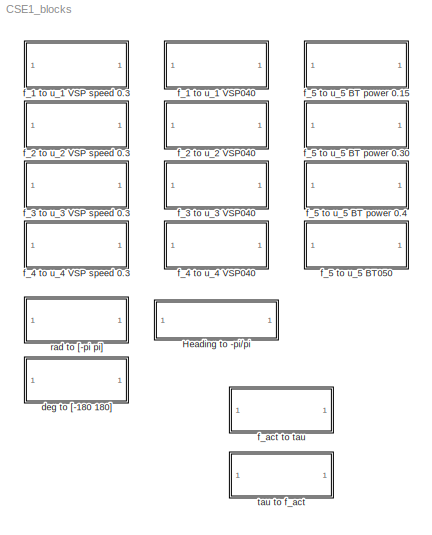
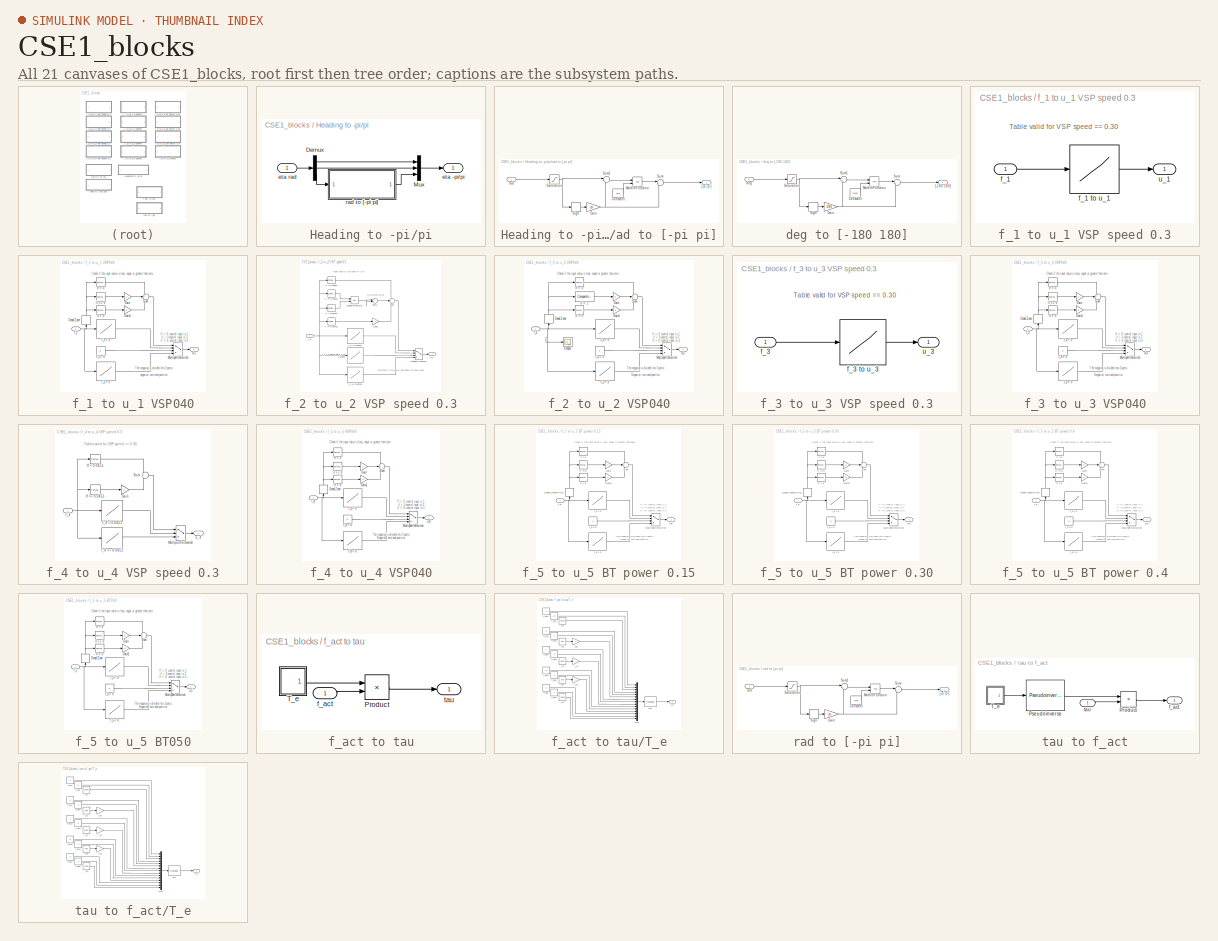
[diagram: thumbnail index - all 21 canvases of the model, root first then tree order]
MODEL CSE1_blocks
KIND model
BLOCK [SubSystem] Heading to -pi//pi
  FunctionWithSeparateData = off
  MaskHideContents = off
  MinAlgLoopOccurrences = off
  Opaque = off
  Ports = [1, 1]
  PropExecContextOutsideSubsystem = off
  RTWSystemCode = Auto
  RequestExecContextInheritance = off
BLOCK [Demux] Heading to -pi//pi/Demux
  DisplayOption = bar
  Outputs = 3
  Ports = [1, 3]
BLOCK [Mux] Heading to -pi//pi/Mux
  DisplayOption = bar
  Inputs = 3
  Ports = [3, 1]
BLOCK [Outport] Heading to -pi//pi/eta -pi//pi
  IconDisplay = Port number
BLOCK [Inport] Heading to -pi//pi/eta rad
  IconDisplay = Port number
BLOCK [SubSystem] Heading to -pi//pi/rad to [-pi pi]
  FunctionWithSeparateData = off
  MaskDescription = Converts an angle in rad to between -pi and pi
  MaskDisplay = disp('rad to [-pi pi]')
  MaskHideContents = off
  MaskIconFrame = on
  MaskIconOpaque = on
  MaskIconRotate = none
  MaskIconUnits = autoscale
  MaskPortRotate = default
  MaskType = rad to pi/pi
  MinAlgLoopOccurrences = off
  Opaque = off
  Ports = [1, 1]
  PropExecContextOutsideSubsystem = off
  RTWSystemCode = Auto
  RequestExecContextInheritance = off
BLOCK [Constant] Heading to -pi//pi/rad to [-pi pi]/Constant
  OutDataType = sfix(16)
  OutScaling = 2^0
  Value = 2*pi
BLOCK [Gain] Heading to -pi//pi/rad to [-pi pi]/Gain
  Gain = pi
  OutDataType = sfix(16)
  OutScaling = 2^0
  ParameterDataType = sfix(16)
  ParameterScaling = 2^0
BLOCK [Math] Heading to -pi//pi/rad to [-pi pi]/Math\nFunction
  Operator = rem
  OutDataType = sfix(16)
  OutScaling = 2^0
  Ports = [2, 1]
BLOCK [Saturate] Heading to -pi//pi/rad to [-pi pi]/Saturation
  LowerLimit = -1e10
  UpperLimit = 1e10
BLOCK [Signum] Heading to -pi//pi/rad to [-pi pi]/Sign
BLOCK [Sum] Heading to -pi//pi/rad to [-pi pi]/Sum
  IconShape = round
  InputSameDT = off
  Inputs = |+-
  OutDataType = sfix(16)
  OutDataTypeMode = Inherit via internal rule
  OutDataTypeStr = Inherit: Inherit via internal rule
  OutScaling = 2^0
  Ports = [2, 1]
BLOCK [Sum] Heading to -pi//pi/rad to [-pi pi]/Sum1
  IconShape = round
  InputSameDT = off
  Inputs = |++
  OutDataType = sfix(16)
  OutDataTypeMode = Inherit via internal rule
  OutDataTypeStr = Inherit: Inherit via internal rule
  OutScaling = 2^0
  Ports = [2, 1]
BLOCK [Outport] Heading to -pi//pi/rad to [-pi pi]/[-pi pi]
  IconDisplay = Port number
  OutDataType = sfix(16)
  OutScaling = 2^0
BLOCK [Inport] Heading to -pi//pi/rad to [-pi pi]/rad
  IconDisplay = Port number
  OutDataType = sfix(16)
  OutScaling = 2^0
BLOCK [SubSystem] deg to [-180 180]
  FunctionWithSeparateData = off
  MaskDescription = Converts an angle in deg to between -180 and 180
  MaskDisplay = disp('deg to [-180 180]')
  MaskHideContents = off
  MaskIconFrame = on
  MaskIconOpaque = on
  MaskIconRotate = none
  MaskIconUnits = autoscale
  MaskPortRotate = default
  MaskType = deg to -180/180
  MinAlgLoopOccurrences = off
  Opaque = off
  Ports = [1, 1]
  PropExecContextOutsideSubsystem = off
  RTWSystemCode = Auto
  RequestExecContextInheritance = off
BLOCK [Constant] deg to [-180 180]/Constant
  OutDataType = sfix(16)
  OutScaling = 2^0
  Value = 2*180
BLOCK [Gain] deg to [-180 180]/Gain
  Gain = 180
  OutDataType = sfix(16)
  OutScaling = 2^0
  ParameterDataType = sfix(16)
  ParameterScaling = 2^0
BLOCK [Math] deg to [-180 180]/Math\nFunction
  Operator = rem
  OutDataType = sfix(16)
  OutScaling = 2^0
  Ports = [2, 1]
BLOCK [Saturate] deg to [-180 180]/Saturation
  LowerLimit = -1e10
  UpperLimit = 1e10
BLOCK [Signum] deg to [-180 180]/Sign
BLOCK [Sum] deg to [-180 180]/Sum
  IconShape = round
  InputSameDT = off
  Inputs = |+-
  OutDataType = sfix(16)
  OutDataTypeMode = Inherit via internal rule
  OutDataTypeStr = Inherit: Inherit via internal rule
  OutScaling = 2^0
  Ports = [2, 1]
BLOCK [Sum] deg to [-180 180]/Sum1
  IconShape = round
  InputSameDT = off
  Inputs = |++
  OutDataType = sfix(16)
  OutDataTypeMode = Inherit via internal rule
  OutDataTypeStr = Inherit: Inherit via internal rule
  OutScaling = 2^0
  Ports = [2, 1]
BLOCK [Outport] deg to [-180 180]/[-180 180]
  IconDisplay = Port number
  OutDataType = sfix(16)
  OutScaling = 2^0
BLOCK [Inport] deg to [-180 180]/deg
  IconDisplay = Port number
  OutDataType = sfix(16)
  OutScaling = 2^0
BLOCK [SubSystem] f_1 to u_1 VSP speed 0.3
  FunctionWithSeparateData = off
  MaskHideContents = off
  MinAlgLoopOccurrences = off
  Opaque = off
  Ports = [1, 1]
  PropExecContextOutsideSubsystem = off
  RTWSystemCode = Auto
  RequestExecContextInheritance = off
BLOCK [Inport] f_1 to u_1 VSP speed 0.3/f_1
  IconDisplay = Port number
BLOCK [Lookup] f_1 to u_1 VSP speed 0.3/f_1 to u_1
  InputValues = [-0.6829 -0.6369 -0.5785 -0.5165 -0.4456 -0.3725 -0.3308 -0.2827 -0.2277 -0.1517 -0.1240 -0.0769 -0.0238 0.0039 0.0377 0.0635 0.1051 0.1196 0.1412 0.1721 0.1754 0.1774 0.2104 0.2200 0.2266 0.2673 0.3025 0.3486 0.3896 0.4252 0.4782 0.5164 0.5695 0.6195 0.6723 0.7449 0.7836 0.8414 0.8987 ]
  LookUpMeth = Interpolation-Use End Values
  OutDataType = fixdt(1, 16)
  OutScaling = 2^0
  SaturateOnIntegerOverflow = off
  Table = [-1.0000 -0.9500 -0.9000 -0.8500 -0.8000 -0.7500 -0.7000 -0.6500 -0.6000 -0.5500 -0.5000 -0.4500 -0.4000 -0.3500 -0.3000 -0.2500 -0.2000 -0.1500 -0.1000 -0.0500 0 0.0500 0.1000 0.1500 0.2000 0.2500 0.3000 0.3500 0.4000 0.4500 0.5000 0.5500 0.6000 0.6500 0.7000 0.7500 0.8000 0.8500 0.9000]
BLOCK [Outport] f_1 to u_1 VSP speed 0.3/u_1
  IconDisplay = Port number
BLOCK [SubSystem] f_1 to u_1 VSP040
  FunctionWithSeparateData = off
  MaskHideContents = off
  MinAlgLoopOccurrences = off
  Opaque = off
  Ports = [1, 1]
  PropExecContextOutsideSubsystem = off
  RTWSystemCode = Auto
  RequestExecContextInheritance = off
BLOCK [DeadZone] f_1 to u_1 VSP040/Dead Zone
  LowerValue = -0.001
  UpperValue = 0.001
BLOCK [Gain] f_1 to u_1 VSP040/Gain
  Gain = 2
  OutDataType = fixdt(1, 16)
  OutDataTypeMode = Inherit via internal rule
  OutDataTypeStr = Inherit: Inherit via internal rule
  OutScaling = 2^0
  ParamDataTypeStr = Inherit: Inherit via internal rule
  ParameterDataType = fixdt(1, 16)
  ParameterDataTypeMode = Inherit via internal rule
  ParameterScaling = 2^0
  SaturateOnIntegerOverflow = off
BLOCK [Gain] f_1 to u_1 VSP040/Gain1
  Gain = 3
  OutDataType = fixdt(1, 16)
  OutDataTypeMode = Inherit via internal rule
  OutDataTypeStr = Inherit: Inherit via internal rule
  OutScaling = 2^0
  ParamDataTypeStr = Inherit: Inherit via internal rule
  ParameterDataType = fixdt(1, 16)
  ParameterDataTypeMode = Inherit via internal rule
  ParameterScaling = 2^0
  SaturateOnIntegerOverflow = off
BLOCK [Reference] f_1 to u_1 VSP040/If < 0  REF=simulink/Logic and Bit\nOperations/Compare\nTo Constant
  FunctionWithSeparateData = off
  LogicOutDataTypeMode = uint8
  Ports = [1, 1]
  RTWMemSecDataConstants = Inherit from model
  RTWMemSecDataInternal = Inherit from model
  RTWMemSecDataParameters = Inherit from model
  RTWMemSecFuncExecute = Inherit from model
  RTWMemSecFuncInitTerm = Inherit from model
  ShowPortLabels = FromPortIcon
  SourceBlock = simulink/Logic and Bit\nOperations/Compare\nTo Constant
  SourceType = Compare To Constant
  SystemSampleTime = -1
  ZeroCross = on
  const = 0
  relop = <
BLOCK [Reference] f_1 to u_1 VSP040/If > 0  REF=simulink/Logic and Bit\nOperations/Compare\nTo Constant
  FunctionWithSeparateData = off
  LogicOutDataTypeMode = uint8
  Ports = [1, 1]
  RTWMemSecDataConstants = Inherit from model
  RTWMemSecDataInternal = Inherit from model
  RTWMemSecDataParameters = Inherit from model
  RTWMemSecFuncExecute = Inherit from model
  RTWMemSecFuncInitTerm = Inherit from model
  ShowPortLabels = FromPortIcon
  SourceBlock = simulink/Logic and Bit\nOperations/Compare\nTo Constant
  SourceType = Compare To Constant
  SystemSampleTime = -1
  ZeroCross = on
  const = 0
  relop = >
BLOCK [MultiPortSwitch] f_1 to u_1 VSP040/Multiport\nSwitch
  InputSameDT = off
  OutDataType = fixdt(1, 16)
  OutScaling = 2^0
  Ports = [4, 1]
  SaturateOnIntegerOverflow = off
BLOCK [Sum] f_1 to u_1 VSP040/Sum
  IconShape = round
  InputSameDT = off
  Inputs = +++
  OutDataType = fixdt(1, 16)
  OutDataTypeMode = Inherit via internal rule
  OutDataTypeStr = Inherit: Inherit via internal rule
  OutScaling = 2^0
  Ports = [3, 1]
  SaturateOnIntegerOverflow = off
BLOCK [Inport] f_1 to u_1 VSP040/f_1
  IconDisplay = Port number
BLOCK [Lookup] f_1 to u_1 VSP040/f_1 < 0
  InputValues = [-1.324\n-1.169\n-0.919\n-0.703\n-0.535\n-0.292\n-0.165\n-0.060\n0]
  LookUpMeth = Interpolation-Use End Values
  OutDataType = fixdt(1, 16)
  OutScaling = 2^0
  SaturateOnIntegerOverflow = off
  Table = [-1.0000\n   -0.9000\n   -0.8000\n   -0.7000\n   -0.6000\n   -0.5000\n   -0.4000\n   -0.3000\n   -0.2089]
BLOCK [Constant] f_1 to u_1 VSP040/f_1 = 0
  OutDataType = fixdt(1, 16)
  OutScaling = 2^0
  Value = 0
BLOCK [Lookup] f_1 to u_1 VSP040/f_1 > 0
  InputValues = [0\n    0.0510\n    0.1530\n    0.3080\n    0.4800\n    0.6630\n    0.9110\n    1.0570\n    1.2210\n    1.3740]
  LookUpMeth = Interpolation-Use End Values
  OutDataType = fixdt(1, 16)
  OutScaling = 2^0
  SaturateOnIntegerOverflow = off
  Table = [0.0500\n    0.1000\n    0.2000\n    0.3000\n    0.4000\n    0.5000\n    0.6000\n    0.7000\n    0.8000\n    0.9000]
BLOCK [Reference] f_1 to u_1 VSP040/if == 0  REF=simulink/Logic and Bit\nOperations/Compare\nTo Zero
  FunctionWithSeparateData = off
  LogicOutDataTypeMode = uint8
  Ports = [1, 1]
  RTWMemSecDataConstants = Inherit from model
  RTWMemSecDataInternal = Inherit from model
  RTWMemSecDataParameters = Inherit from model
  RTWMemSecFuncExecute = Inherit from model
  RTWMemSecFuncInitTerm = Inherit from model
  ShowPortLabels = FromPortIcon
  SourceBlock = simulink/Logic and Bit\nOperations/Compare\nTo Zero
  SourceType = Compare To Zero
  SystemSampleTime = -1
  ZeroCross = on
  relop = ==
BLOCK [Outport] f_1 to u_1 VSP040/u_1
  IconDisplay = Port number
BLOCK [SubSystem] f_2 to u_2 VSP speed 0.3
  FunctionWithSeparateData = off
  MaskHideContents = off
  MinAlgLoopOccurrences = off
  Opaque = off
  Ports = [1, 1]
  PropExecContextOutsideSubsystem = off
  RTWSystemCode = Auto
  RequestExecContextInheritance = off
BLOCK [Gain] f_2 to u_2 VSP speed 0.3/Gain1
  Gain = 3
  OutDataType = fixdt(1, 16)
  OutDataTypeMode = Inherit via internal rule
  OutDataTypeStr = Inherit: Inherit via internal rule
  OutScaling = 2^0
  ParamDataTypeStr = Inherit: Inherit via internal rule
  ParameterDataType = fixdt(1, 16)
  ParameterDataTypeMode = Inherit via internal rule
  ParameterScaling = 2^0
  SaturateOnIntegerOverflow = off
BLOCK [Reference] f_2 to u_2 VSP speed 0.3/If < 0.00391  REF=simulink/Logic and Bit\nOperations/Compare\nTo Constant
  FunctionWithSeparateData = off
  LogicOutDataTypeMode = uint8
  Ports = [1, 1]
  RTWMemSecDataConstants = Inherit from model
  RTWMemSecDataInternal = Inherit from model
  RTWMemSecDataParameters = Inherit from model
  RTWMemSecFuncExecute = Inherit from model
  RTWMemSecFuncInitTerm = Inherit from model
  ShowPortLabels = FromPortIcon
  SourceBlock = simulink/Logic and Bit\nOperations/Compare\nTo Constant
  SourceType = Compare To Constant
  SystemSampleTime = -1
  ZeroCross = on
  const = 0.00391
  relop = <
BLOCK [Reference] f_2 to u_2 VSP speed 0.3/If < 0.06731  REF=simulink/Logic and Bit\nOperations/Compare\nTo Constant
  FunctionWithSeparateData = off
  LogicOutDataTypeMode = uint8
  Ports = [1, 1]
  RTWMemSecDataConstants = Inherit from model
  RTWMemSecDataInternal = Inherit from model
  RTWMemSecDataParameters = Inherit from model
  RTWMemSecFuncExecute = Inherit from model
  RTWMemSecFuncInitTerm = Inherit from model
  ShowPortLabels = FromPortIcon
  SourceBlock = simulink/Logic and Bit\nOperations/Compare\nTo Constant
  SourceType = Compare To Constant
  SystemSampleTime = -1
  ZeroCross = on
  const = 0.06731
  relop = <
BLOCK [Reference] f_2 to u_2 VSP speed 0.3/If >= 0.00391  REF=simulink/Logic and Bit\nOperations/Compare\nTo Constant
  FunctionWithSeparateData = off
  LogicOutDataTypeMode = uint8
  Ports = [1, 1]
  RTWMemSecDataConstants = Inherit from model
  RTWMemSecDataInternal = Inherit from model
  RTWMemSecDataParameters = Inherit from model
  RTWMemSecFuncExecute = Inherit from model
  RTWMemSecFuncInitTerm = Inherit from model
  ShowPortLabels = FromPortIcon
  SourceBlock = simulink/Logic and Bit\nOperations/Compare\nTo Constant
  SourceType = Compare To Constant
  SystemSampleTime = -1
  ZeroCross = on
  const = 0.00391
  relop = >=
BLOCK [Reference] f_2 to u_2 VSP speed 0.3/If >= 0.06731  REF=simulink/Logic and Bit\nOperations/Compare\nTo Constant
  FunctionWithSeparateData = off
  LogicOutDataTypeMode = uint8
  Ports = [1, 1]
  RTWMemSecDataConstants = Inherit from model
  RTWMemSecDataInternal = Inherit from model
  RTWMemSecDataParameters = Inherit from model
  RTWMemSecFuncExecute = Inherit from model
  RTWMemSecFuncInitTerm = Inherit from model
  ShowPortLabels = FromPortIcon
  SourceBlock = simulink/Logic and Bit\nOperations/Compare\nTo Constant
  SourceType = Compare To Constant
  SystemSampleTime = -1
  ZeroCross = on
  const = 0.06731
  relop = >=
BLOCK [Logic] f_2 to u_2 VSP speed 0.3/Logical\nOperator
  AllPortsSameDT = off
  LogicDataType = fixdt(0, 8)
  OutDataTypeMode = boolean
  OutDataTypeStr = boolean
  Ports = [2, 1]
BLOCK [MultiPortSwitch] f_2 to u_2 VSP speed 0.3/Multiport\nSwitch
  InputSameDT = off
  OutDataType = fixdt(1, 16)
  OutScaling = 2^0
  Ports = [4, 1]
  SaturateOnIntegerOverflow = off
BLOCK [Sum] f_2 to u_2 VSP speed 0.3/Sum
  IconShape = round
  InputSameDT = off
  Inputs = +++
  OutDataType = fixdt(1, 16)
  OutDataTypeMode = Inherit via internal rule
  OutDataTypeStr = Inherit: Inherit via internal rule
  OutScaling = 2^0
  Ports = [3, 1]
  SaturateOnIntegerOverflow = off
BLOCK [Sum] f_2 to u_2 VSP speed 0.3/Sum1
  IconShape = round
  InputSameDT = off
  Inputs = |++
  OutDataType = fixdt(1, 16)
  OutDataTypeMode = Inherit via internal rule
  OutDataTypeStr = Inherit: Inherit via internal rule
  OutScaling = 2^0
  Ports = [2, 1]
  SaturateOnIntegerOverflow = off
BLOCK [Inport] f_2 to u_2 VSP speed 0.3/f_2
  IconDisplay = Port number
BLOCK [Lookup] f_2 to u_2 VSP speed 0.3/f_2 < 0.00391
  InputValues = [-0.2704\n   -0.2259\n   -0.1903\n   -0.1697\n   -0.1518\n   -0.1234\n   -0.0994\n   -0.0817\n   -0.0612\n   -0.0123\n    0.0039]
  LookUpMeth = Interpolation-Use End Values
  OutDataType = fixdt(1, 16)
  OutScaling = 2^0
  SaturateOnIntegerOverflow = off
  Table = [-1.0000\n   -0.9500\n   -0.9000\n   -0.8500\n   -0.8000\n   -0.7500\n   -0.7000\n   -0.6500\n   -0.6000\n   -0.5500\n   -0.5000]
BLOCK [Lookup] f_2 to u_2 VSP speed 0.3/f_2 < 0.06731 && f_2 >= 0.00391
  InputValues = [-0.0105\n    0.0226\n    0.0673]
  LookUpMeth = Interpolation-Use End Values
  OutDataType = fixdt(1, 16)
  OutScaling = 2^0
  SaturateOnIntegerOverflow = off
  Table = [-0.2000\n   -0.1500\n   -0.1000]
BLOCK [Lookup] f_2 to u_2 VSP speed 0.3/f_2 => 0.06731
  InputValues = [0.0872\n    0.0930\n    0.1182\n    0.1412\n    0.1892\n    0.2146\n    0.2678\n    0.3096\n    0.3551\n    0.4013\n    0.4566\n    0.5051\n    0.5477\n    0.6060\n    0.6703\n    0.7437\n    0.7604\n    0.7634]
  LookUpMeth = Interpolation-Use End Values
  OutDataType = fixdt(1, 16)
  OutScaling = 2^0
  SaturateOnIntegerOverflow = off
  Table = [0\n    0.0500\n    0.1000\n    0.1500\n    0.2000\n    0.2500\n    0.3000\n    0.3500\n    0.4000\n    0.4500\n    0.5000\n    0.5500\n    0.6000\n    0.6500\n    0.7000\n    0.7500\n    0.8000\n    0.8500]
BLOCK [Outport] f_2 to u_2 VSP speed 0.3/u_2
  IconDisplay = Port number
BLOCK [SubSystem] f_2 to u_2 VSP040
  FunctionWithSeparateData = off
  MaskHideContents = off
  MinAlgLoopOccurrences = off
  Opaque = off
  Ports = [1, 1]
  PropExecContextOutsideSubsystem = off
  RTWSystemCode = Auto
  RequestExecContextInheritance = off
BLOCK [DeadZone] f_2 to u_2 VSP040/Dead Zone
  LowerValue = -0.001
  UpperValue = 0.001
BLOCK [Gain] f_2 to u_2 VSP040/Gain
  Gain = 2
  OutDataType = fixdt(1, 16)
  OutDataTypeMode = Inherit via internal rule
  OutDataTypeStr = Inherit: Inherit via internal rule
  OutScaling = 2^0
  ParamDataTypeStr = Inherit: Inherit via internal rule
  ParameterDataType = fixdt(1, 16)
  ParameterDataTypeMode = Inherit via internal rule
  ParameterScaling = 2^0
  SaturateOnIntegerOverflow = off
BLOCK [Gain] f_2 to u_2 VSP040/Gain1
  Gain = 3
  OutDataType = fixdt(1, 16)
  OutDataTypeMode = Inherit via internal rule
  OutDataTypeStr = Inherit: Inherit via internal rule
  OutScaling = 2^0
  ParamDataTypeStr = Inherit: Inherit via internal rule
  ParameterDataType = fixdt(1, 16)
  ParameterDataTypeMode = Inherit via internal rule
  ParameterScaling = 2^0
  SaturateOnIntegerOverflow = off
BLOCK [Reference] f_2 to u_2 VSP040/If < 0  REF=simulink/Logic and Bit\nOperations/Compare\nTo Constant
  FunctionWithSeparateData = off
  LogicOutDataTypeMode = uint8
  Ports = [1, 1]
  RTWMemSecDataConstants = Inherit from model
  RTWMemSecDataInternal = Inherit from model
  RTWMemSecDataParameters = Inherit from model
  RTWMemSecFuncExecute = Inherit from model
  RTWMemSecFuncInitTerm = Inherit from model
  ShowPortLabels = FromPortIcon
  SourceBlock = simulink/Logic and Bit\nOperations/Compare\nTo Constant
  SourceType = Compare To Constant
  SystemSampleTime = -1
  ZeroCross = on
  const = 0
  relop = <
BLOCK [Reference] f_2 to u_2 VSP040/If < 1  REF=simulink/Logic and Bit\nOperations/Compare\nTo Constant
  FunctionWithSeparateData = off
  LogicOutDataTypeMode = uint8
  Ports = [1, 1]
  RTWMemSecDataConstants = Inherit from model
  RTWMemSecDataInternal = Inherit from model
  RTWMemSecDataParameters = Inherit from model
  RTWMemSecFuncExecute = Inherit from model
  RTWMemSecFuncInitTerm = Inherit from model
  ShowPortLabels = FromPortIcon
  SourceBlock = simulink/Logic and Bit\nOperations/Compare\nTo Constant
  SourceType = Compare To Constant
  SystemSampleTime = -1
  ZeroCross = on
  const = 0
  relop = ==
BLOCK [Reference] f_2 to u_2 VSP040/If > 0  REF=simulink/Logic and Bit\nOperations/Compare\nTo Constant
  FunctionWithSeparateData = off
  LogicOutDataTypeMode = uint8
  Ports = [1, 1]
  RTWMemSecDataConstants = Inherit from model
  RTWMemSecDataInternal = Inherit from model
  RTWMemSecDataParameters = Inherit from model
  RTWMemSecFuncExecute = Inherit from model
  RTWMemSecFuncInitTerm = Inherit from model
  ShowPortLabels = FromPortIcon
  SourceBlock = simulink/Logic and Bit\nOperations/Compare\nTo Constant
  SourceType = Compare To Constant
  SystemSampleTime = -1
  ZeroCross = on
  const = 0
  relop = >
BLOCK [MultiPortSwitch] f_2 to u_2 VSP040/Multiport\nSwitch
  InputSameDT = off
  OutDataType = fixdt(1, 16)
  OutScaling = 2^0
  Ports = [4, 1]
  SaturateOnIntegerOverflow = off
BLOCK [Scope] f_2 to u_2 VSP040/Scope2
  DataFormat = StructureWithTime
  Floating = off
  NumInputPorts = 1
  Ports = [1]
  SampleTime = 0
  SaveName = ScopeData7
BLOCK [Sum] f_2 to u_2 VSP040/Sum
  IconShape = round
  InputSameDT = off
  Inputs = +++
  OutDataType = fixdt(1, 16)
  OutDataTypeMode = Inherit via internal rule
  OutDataTypeStr = Inherit: Inherit via internal rule
  OutScaling = 2^0
  Ports = [3, 1]
  SaturateOnIntegerOverflow = off
BLOCK [Inport] f_2 to u_2 VSP040/f_2
  IconDisplay = Port number
BLOCK [Lookup] f_2 to u_2 VSP040/f_2 < 0
  InputValues = [-0.766\n-0.649\n-0.522\n-0.411\n-0.323\n-0.246\n-0.156\n-0.075\n-0.018\n-0.006\n0]
  LookUpMeth = Interpolation-Use End Values
  OutDataType = fixdt(1, 16)
  OutScaling = 2^0
  SaturateOnIntegerOverflow = off
  Table = [-1.0000\n   -0.9000\n   -0.8000\n   -0.7000\n   -0.6000\n   -0.5000\n   -0.4000\n   -0.3000\n   -0.2000\n   -0.1000\n   -0.0466]
BLOCK [Constant] f_2 to u_2 VSP040/f_2 = 0
  OutDataType = fixdt(1, 16)
  OutScaling = 2^0
  Value = 0
BLOCK [Lookup] f_2 to u_2 VSP040/f_2 > 0
  InputValues = [0.000\n0.052\n0.207\n0.331\n0.509\n0.689\n0.829\n0.961\n1.079\n1.120\n]
  LookUpMeth = Interpolation-Use End Values
  OutDataType = fixdt(1, 16)
  OutScaling = 2^0
  SaturateOnIntegerOverflow = off
  Table = [0.1665\n    0.2000\n    0.3000\n    0.4000\n    0.5000\n    0.6000\n    0.7000\n    0.8000\n    0.9000\n    1.0000]
BLOCK [Outport] f_2 to u_2 VSP040/u_2
  IconDisplay = Port number
BLOCK [SubSystem] f_3 to u_3 VSP speed 0.3
  FunctionWithSeparateData = off
  MaskHideContents = off
  MinAlgLoopOccurrences = off
  Opaque = off
  Ports = [1, 1]
  PropExecContextOutsideSubsystem = off
  RTWSystemCode = Auto
  RequestExecContextInheritance = off
BLOCK [Inport] f_3 to u_3 VSP speed 0.3/f_3
  IconDisplay = Port number
BLOCK [Lookup] f_3 to u_3 VSP speed 0.3/f_3 to u_3
  InputValues = [-0.5408,-0.5036,-0.4487,-0.3802,-0.3147,-0.2525,-0.2338,-0.1568,-0.1034,-0.0647,-0.0054,0.0221,0.0572,0.0747,0.0991,0.1258,0.1385,0.1447,0.1539,0.1625,0.1712,0.1976,0.2258,0.2443,0.3058,0.3460,0.3989,0.4342,0.4932,0.5524,0.5814,0.6394,0.6851,0.7496,0.8081,0.8382,0.8665,0.8767,0.8885]
  LookUpMeth = Interpolation-Use End Values
  OutDataType = fixdt(1, 16)
  OutScaling = 2^0
  SaturateOnIntegerOverflow = off
  Table = [-1.0000,-0.9500,-0.9000,-0.8500,-0.8000,-0.7500,-0.7000,-0.6500,-0.6000,-0.5500,-0.5000,-0.4500,-0.4000,-0.3500,-0.3000,-0.2000,-0.1500,-0.1000,-0.0500,0,0.0500,0.1000,0.1500,0.2000,0.2500,0.3000,0.3500,0.4000,0.4500,0.5000,0.5500,0.6000,0.6500,0.7000,0.7500,0.8000,0.8500,0.9500,1.0000]
BLOCK [Outport] f_3 to u_3 VSP speed 0.3/u_3
  IconDisplay = Port number
BLOCK [SubSystem] f_3 to u_3 VSP040
  FunctionWithSeparateData = off
  MaskHideContents = off
  MinAlgLoopOccurrences = off
  Opaque = off
  Ports = [1, 1]
  PropExecContextOutsideSubsystem = off
  RTWSystemCode = Auto
  RequestExecContextInheritance = off
BLOCK [DeadZone] f_3 to u_3 VSP040/Dead Zone
  LowerValue = -0.001
  UpperValue = 0.001
BLOCK [Gain] f_3 to u_3 VSP040/Gain
  Gain = 2
  OutDataType = fixdt(1, 16)
  OutDataTypeMode = Inherit via internal rule
  OutDataTypeStr = Inherit: Inherit via internal rule
  OutScaling = 2^0
  ParamDataTypeStr = Inherit: Inherit via internal rule
  ParameterDataType = fixdt(1, 16)
  ParameterDataTypeMode = Inherit via internal rule
  ParameterScaling = 2^0
  SaturateOnIntegerOverflow = off
BLOCK [Gain] f_3 to u_3 VSP040/Gain1
  Gain = 3
  OutDataType = fixdt(1, 16)
  OutDataTypeMode = Inherit via internal rule
  OutDataTypeStr = Inherit: Inherit via internal rule
  OutScaling = 2^0
  ParamDataTypeStr = Inherit: Inherit via internal rule
  ParameterDataType = fixdt(1, 16)
  ParameterDataTypeMode = Inherit via internal rule
  ParameterScaling = 2^0
  SaturateOnIntegerOverflow = off
BLOCK [Reference] f_3 to u_3 VSP040/If < 0  REF=simulink/Logic and Bit\nOperations/Compare\nTo Constant
  FunctionWithSeparateData = off
  LogicOutDataTypeMode = uint8
  Ports = [1, 1]
  RTWMemSecDataConstants = Inherit from model
  RTWMemSecDataInternal = Inherit from model
  RTWMemSecDataParameters = Inherit from model
  RTWMemSecFuncExecute = Inherit from model
  RTWMemSecFuncInitTerm = Inherit from model
  ShowPortLabels = FromPortIcon
  SourceBlock = simulink/Logic and Bit\nOperations/Compare\nTo Constant
  SourceType = Compare To Constant
  SystemSampleTime = -1
  ZeroCross = on
  const = 0
  relop = <
BLOCK [Reference] f_3 to u_3 VSP040/If > 0  REF=simulink/Logic and Bit\nOperations/Compare\nTo Constant
  FunctionWithSeparateData = off
  LogicOutDataTypeMode = uint8
  Ports = [1, 1]
  RTWMemSecDataConstants = Inherit from model
  RTWMemSecDataInternal = Inherit from model
  RTWMemSecDataParameters = Inherit from model
  RTWMemSecFuncExecute = Inherit from model
  RTWMemSecFuncInitTerm = Inherit from model
  ShowPortLabels = FromPortIcon
  SourceBlock = simulink/Logic and Bit\nOperations/Compare\nTo Constant
  SourceType = Compare To Constant
  SystemSampleTime = -1
  ZeroCross = on
  const = 0
  relop = >
BLOCK [MultiPortSwitch] f_3 to u_3 VSP040/Multiport\nSwitch
  InputSameDT = off
  OutDataType = fixdt(1, 16)
  OutScaling = 2^0
  Ports = [4, 1]
  SaturateOnIntegerOverflow = off
BLOCK [Sum] f_3 to u_3 VSP040/Sum
  IconShape = round
  InputSameDT = off
  Inputs = +++
  OutDataType = fixdt(1, 16)
  OutDataTypeMode = Inherit via internal rule
  OutDataTypeStr = Inherit: Inherit via internal rule
  OutScaling = 2^0
  Ports = [3, 1]
  SaturateOnIntegerOverflow = off
BLOCK [Inport] f_3 to u_3 VSP040/f_3
  IconDisplay = Port number
BLOCK [Lookup] f_3 to u_3 VSP040/f_3 < 0
  InputValues = [-1.291\n-1.088\n-0.885\n-0.618\n-0.403\n-0.211\n-0.034\n0.000]
  LookUpMeth = Interpolation-Use End Values
  OutDataType = fixdt(1, 16)
  OutScaling = 2^0
  SaturateOnIntegerOverflow = off
  Table = [-0.9000\n   -0.8000\n   -0.7000\n   -0.6000\n   -0.5000\n   -0.4000\n   -0.3000\n   -0.2809]
BLOCK [Constant] f_3 to u_3 VSP040/f_3 = 0
  OutDataType = fixdt(1, 16)
  OutScaling = 2^0
  Value = 0
BLOCK [Lookup] f_3 to u_3 VSP040/f_3 > 0
  InputValues = [0.000\n0.014\n0.040\n0.147\n0.302\n0.494\n0.680\n0.968\n1.111\n1.289\n1.339]
  LookUpMeth = Interpolation-Use End Values
  OutDataType = fixdt(1, 16)
  OutScaling = 2^0
  SaturateOnIntegerOverflow = off
  Table = [0.0452\n    0.1000\n    0.2000\n    0.3000\n    0.4000\n    0.5000\n    0.6000\n    0.7000\n    0.8000\n    0.9000\n    1.0000\n]
BLOCK [Reference] f_3 to u_3 VSP040/if == 0  REF=simulink/Logic and Bit\nOperations/Compare\nTo Zero
  FunctionWithSeparateData = off
  LogicOutDataTypeMode = uint8
  Ports = [1, 1]
  RTWMemSecDataConstants = Inherit from model
  RTWMemSecDataInternal = Inherit from model
  RTWMemSecDataParameters = Inherit from model
  RTWMemSecFuncExecute = Inherit from model
  RTWMemSecFuncInitTerm = Inherit from model
  ShowPortLabels = FromPortIcon
  SourceBlock = simulink/Logic and Bit\nOperations/Compare\nTo Zero
  SourceType = Compare To Zero
  SystemSampleTime = -1
  ZeroCross = on
  relop = ==
BLOCK [Outport] f_3 to u_3 VSP040/u_3
  IconDisplay = Port number
BLOCK [SubSystem] f_4 to u_4 VSP speed 0.3
  FunctionWithSeparateData = off
  MaskHideContents = off
  MinAlgLoopOccurrences = off
  Opaque = off
  Ports = [1, 1]
  PropExecContextOutsideSubsystem = off
  RTWSystemCode = Auto
  RequestExecContextInheritance = off
BLOCK [Gain] f_4 to u_4 VSP speed 0.3/Gain
  Gain = 2
  OutDataType = fixdt(1, 16)
  OutDataTypeMode = Inherit via internal rule
  OutDataTypeStr = Inherit: Inherit via internal rule
  OutScaling = 2^0
  ParamDataTypeStr = Inherit: Inherit via internal rule
  ParameterDataType = fixdt(1, 16)
  ParameterDataTypeMode = Inherit via internal rule
  ParameterScaling = 2^0
  SaturateOnIntegerOverflow = off
BLOCK [Reference] f_4 to u_4 VSP speed 0.3/If < 0.0451  REF=simulink/Logic and Bit\nOperations/Compare\nTo Constant
  FunctionWithSeparateData = off
  LogicOutDataTypeMode = uint8
  Ports = [1, 1]
  RTWMemSecDataConstants = Inherit from model
  RTWMemSecDataInternal = Inherit from model
  RTWMemSecDataParameters = Inherit from model
  RTWMemSecFuncExecute = Inherit from model
  RTWMemSecFuncInitTerm = Inherit from model
  ShowPortLabels = FromPortIcon
  SourceBlock = simulink/Logic and Bit\nOperations/Compare\nTo Constant
  SourceType = Compare To Constant
  SystemSampleTime = -1
  ZeroCross = on
  const = .0451
  relop = <
BLOCK [Reference] f_4 to u_4 VSP speed 0.3/If >= 0.0451  REF=simulink/Logic and Bit\nOperations/Compare\nTo Constant
  FunctionWithSeparateData = off
  LogicOutDataTypeMode = uint8
  Ports = [1, 1]
  RTWMemSecDataConstants = Inherit from model
  RTWMemSecDataInternal = Inherit from model
  RTWMemSecDataParameters = Inherit from model
  RTWMemSecFuncExecute = Inherit from model
  RTWMemSecFuncInitTerm = Inherit from model
  ShowPortLabels = FromPortIcon
  SourceBlock = simulink/Logic and Bit\nOperations/Compare\nTo Constant
  SourceType = Compare To Constant
  SystemSampleTime = -1
  ZeroCross = on
  const = 0.0451
  relop = >=
BLOCK [MultiPortSwitch] f_4 to u_4 VSP speed 0.3/Multiport\nSwitch
  InputSameDT = off
  Inputs = 2
  OutDataType = fixdt(1, 16)
  OutScaling = 2^0
  Ports = [3, 1]
  SaturateOnIntegerOverflow = off
BLOCK [Sum] f_4 to u_4 VSP speed 0.3/Sum
  IconShape = round
  InputSameDT = off
  Inputs = +|+
  OutDataType = fixdt(1, 16)
  OutDataTypeMode = Inherit via internal rule
  OutDataTypeStr = Inherit: Inherit via internal rule
  OutScaling = 2^0
  Ports = [2, 1]
  SaturateOnIntegerOverflow = off
BLOCK [Inport] f_4 to u_4 VSP speed 0.3/f_4
  IconDisplay = Port number
BLOCK [Lookup] f_4 to u_4 VSP speed 0.3/f_4 < 0.0451
  InputValues = [-0.5212\n   -0.5163\n   -0.4943\n   -0.4390\n   -0.3803\n   -0.3603\n   -0.3132\n   -0.2567\n   -0.2102\n   -0.1609\n   -0.1267\n   -0.0819\n   -0.0554\n    0.0099\n    0.0450]
  LookUpMeth = Interpolation-Use End Values
  OutDataType = fixdt(1, 16)
  OutScaling = 2^0
  SaturateOnIntegerOverflow = off
  Table = [-0.8000\n   -0.7500\n   -0.7000\n   -0.6500\n   -0.6000\n   -0.5500\n   -0.5000\n   -0.4500\n   -0.4000\n   -0.3500\n   -0.3000\n   -0.2500\n   -0.2000\n   -0.1500\n   -0.1000]
BLOCK [Lookup] f_4 to u_4 VSP speed 0.3/f_4 >= 0.0451 
  InputValues = [0.0431\n    0.0808\n    0.0867\n    0.1337\n    0.1726\n    0.1963\n    0.2088\n    0.2323\n    0.2969\n    0.3134\n    0.3376\n    0.3743\n    0.4276]
  LookUpMeth = Interpolation-Use End Values
  OutDataType = fixdt(1, 16)
  OutScaling = 2^0
  SaturateOnIntegerOverflow = off
  Table = [0.4000\n    0.4500\n    0.5000\n    0.5500\n    0.6000\n    0.6500\n    0.7000\n    0.7500\n    0.8000\n    0.8500\n    0.9000\n    0.9500\n    1.0000]
BLOCK [Outport] f_4 to u_4 VSP speed 0.3/u_4
  IconDisplay = Port number
BLOCK [SubSystem] f_4 to u_4 VSP040
  FunctionWithSeparateData = off
  MaskHideContents = off
  MinAlgLoopOccurrences = off
  Opaque = off
  Ports = [1, 1]
  PropExecContextOutsideSubsystem = off
  RTWSystemCode = Auto
  RequestExecContextInheritance = off
BLOCK [DeadZone] f_4 to u_4 VSP040/Dead Zone
  LowerValue = -0.001
  UpperValue = 0.001
BLOCK [Gain] f_4 to u_4 VSP040/Gain
  Gain = 2
  OutDataType = fixdt(1, 16)
  OutDataTypeMode = Inherit via internal rule
  OutDataTypeStr = Inherit: Inherit via internal rule
  OutScaling = 2^0
  ParamDataTypeStr = Inherit: Inherit via internal rule
  ParameterDataType = fixdt(1, 16)
  ParameterDataTypeMode = Inherit via internal rule
  ParameterScaling = 2^0
  SaturateOnIntegerOverflow = off
BLOCK [Gain] f_4 to u_4 VSP040/Gain1
  Gain = 3
  OutDataType = fixdt(1, 16)
  OutDataTypeMode = Inherit via internal rule
  OutDataTypeStr = Inherit: Inherit via internal rule
  OutScaling = 2^0
  ParamDataTypeStr = Inherit: Inherit via internal rule
  ParameterDataType = fixdt(1, 16)
  ParameterDataTypeMode = Inherit via internal rule
  ParameterScaling = 2^0
  SaturateOnIntegerOverflow = off
BLOCK [Reference] f_4 to u_4 VSP040/If < 0  REF=simulink/Logic and Bit\nOperations/Compare\nTo Constant
  FunctionWithSeparateData = off
  LogicOutDataTypeMode = uint8
  Ports = [1, 1]
  RTWMemSecDataConstants = Inherit from model
  RTWMemSecDataInternal = Inherit from model
  RTWMemSecDataParameters = Inherit from model
  RTWMemSecFuncExecute = Inherit from model
  RTWMemSecFuncInitTerm = Inherit from model
  ShowPortLabels = FromPortIcon
  SourceBlock = simulink/Logic and Bit\nOperations/Compare\nTo Constant
  SourceType = Compare To Constant
  SystemSampleTime = -1
  ZeroCross = on
  const = 0
  relop = <
BLOCK [Reference] f_4 to u_4 VSP040/If > 0  REF=simulink/Logic and Bit\nOperations/Compare\nTo Constant
  FunctionWithSeparateData = off
  LogicOutDataTypeMode = uint8
  Ports = [1, 1]
  RTWMemSecDataConstants = Inherit from model
  RTWMemSecDataInternal = Inherit from model
  RTWMemSecDataParameters = Inherit from model
  RTWMemSecFuncExecute = Inherit from model
  RTWMemSecFuncInitTerm = Inherit from model
  ShowPortLabels = FromPortIcon
  SourceBlock = simulink/Logic and Bit\nOperations/Compare\nTo Constant
  SourceType = Compare To Constant
  SystemSampleTime = -1
  ZeroCross = on
  const = 0
  relop = >
BLOCK [MultiPortSwitch] f_4 to u_4 VSP040/Multiport\nSwitch
  InputSameDT = off
  OutDataType = fixdt(1, 16)
  OutScaling = 2^0
  Ports = [4, 1]
  SaturateOnIntegerOverflow = off
BLOCK [Sum] f_4 to u_4 VSP040/Sum
  IconShape = round
  InputSameDT = off
  Inputs = +++
  OutDataType = fixdt(1, 16)
  OutDataTypeMode = Inherit via internal rule
  OutDataTypeStr = Inherit: Inherit via internal rule
  OutScaling = 2^0
  Ports = [3, 1]
  SaturateOnIntegerOverflow = off
BLOCK [Inport] f_4 to u_4 VSP040/f_4
  IconDisplay = Port number
BLOCK [Lookup] f_4 to u_4 VSP040/f_4 < 0
  InputValues = [-1.249\n-1.225\n-1.094\n-0.896\n-0.696\n-0.502\n-0.314\n-0.169\n-0.042\n0.000]
  LookUpMeth = Interpolation-Use End Values
  OutDataType = fixdt(1, 16)
  OutScaling = 2^0
  SaturateOnIntegerOverflow = off
  Table = [-0.9000\n   -0.8000\n   -0.7000\n   -0.6000\n   -0.5000\n   -0.4000\n   -0.3000\n   -0.2000\n   -0.1000\n   -0.0674]
BLOCK [Constant] f_4 to u_4 VSP040/f_4 = 0
  OutDataType = fixdt(1, 16)
  OutScaling = 2^0
  Value = 0
BLOCK [Lookup] f_4 to u_4 VSP040/f_4 > 0
  InputValues = [0.000\n0.063\n0.107\n0.274\n0.441\n0.599\n0.731]
  LookUpMeth = Interpolation-Use End Values
  OutDataType = fixdt(1, 16)
  OutScaling = 2^0
  SaturateOnIntegerOverflow = off
  Table = [0.3588\n    0.5000\n    0.6000\n    0.7000\n    0.8000\n    0.9000\n    1.0000]
BLOCK [Reference] f_4 to u_4 VSP040/if == 0  REF=simulink/Logic and Bit\nOperations/Compare\nTo Zero
  FunctionWithSeparateData = off
  LogicOutDataTypeMode = uint8
  Ports = [1, 1]
  RTWMemSecDataConstants = Inherit from model
  RTWMemSecDataInternal = Inherit from model
  RTWMemSecDataParameters = Inherit from model
  RTWMemSecFuncExecute = Inherit from model
  RTWMemSecFuncInitTerm = Inherit from model
  ShowPortLabels = FromPortIcon
  SourceBlock = simulink/Logic and Bit\nOperations/Compare\nTo Zero
  SourceType = Compare To Zero
  SystemSampleTime = -1
  ZeroCross = on
  relop = ==
BLOCK [Outport] f_4 to u_4 VSP040/u_4
  IconDisplay = Port number
BLOCK [SubSystem] f_5 to u_5 BT power 0.15
  FunctionWithSeparateData = off
  MaskHideContents = off
  MinAlgLoopOccurrences = off
  Opaque = off
  Ports = [1, 1]
  PropExecContextOutsideSubsystem = off
  RTWSystemCode = Auto
  RequestExecContextInheritance = off
BLOCK [DeadZone] f_5 to u_5 BT power 0.15/Dead Zone\n+-0.01
  LowerValue = -0.01
  UpperValue = 0.01
BLOCK [Gain] f_5 to u_5 BT power 0.15/Gain
  Gain = 2
  OutDataType = fixdt(1, 16)
  OutDataTypeMode = Inherit via internal rule
  OutDataTypeStr = Inherit: Inherit via internal rule
  OutScaling = 2^0
  ParamDataTypeStr = Inherit: Inherit via internal rule
  ParameterDataType = fixdt(1, 16)
  ParameterDataTypeMode = Inherit via internal rule
  ParameterScaling = 2^0
  SaturateOnIntegerOverflow = off
BLOCK [Gain] f_5 to u_5 BT power 0.15/Gain1
  Gain = 3
  OutDataType = fixdt(1, 16)
  OutDataTypeMode = Inherit via internal rule
  OutDataTypeStr = Inherit: Inherit via internal rule
  OutScaling = 2^0
  ParamDataTypeStr = Inherit: Inherit via internal rule
  ParameterDataType = fixdt(1, 16)
  ParameterDataTypeMode = Inherit via internal rule
  ParameterScaling = 2^0
  SaturateOnIntegerOverflow = off
BLOCK [Reference] f_5 to u_5 BT power 0.15/If < 0  REF=simulink/Logic and Bit\nOperations/Compare\nTo Constant
  FunctionWithSeparateData = off
  LogicOutDataTypeMode = uint8
  Ports = [1, 1]
  RTWMemSecDataConstants = Inherit from model
  RTWMemSecDataInternal = Inherit from model
  RTWMemSecDataParameters = Inherit from model
  RTWMemSecFuncExecute = Inherit from model
  RTWMemSecFuncInitTerm = Inherit from model
  ShowPortLabels = FromPortIcon
  SourceBlock = simulink/Logic and Bit\nOperations/Compare\nTo Constant
  SourceType = Compare To Constant
  SystemSampleTime = -1
  ZeroCross = on
  const = 0
  relop = <
BLOCK [Reference] f_5 to u_5 BT power 0.15/If > 0  REF=simulink/Logic and Bit\nOperations/Compare\nTo Constant
  FunctionWithSeparateData = off
  LogicOutDataTypeMode = uint8
  Ports = [1, 1]
  RTWMemSecDataConstants = Inherit from model
  RTWMemSecDataInternal = Inherit from model
  RTWMemSecDataParameters = Inherit from model
  RTWMemSecFuncExecute = Inherit from model
  RTWMemSecFuncInitTerm = Inherit from model
  ShowPortLabels = FromPortIcon
  SourceBlock = simulink/Logic and Bit\nOperations/Compare\nTo Constant
  SourceType = Compare To Constant
  SystemSampleTime = -1
  ZeroCross = on
  const = 0
  relop = >
BLOCK [MultiPortSwitch] f_5 to u_5 BT power 0.15/Multiport\nSwitch
  InputSameDT = off
  OutDataType = fixdt(1, 16)
  OutScaling = 2^0
  Ports = [4, 1]
  SaturateOnIntegerOverflow = off
BLOCK [Sum] f_5 to u_5 BT power 0.15/Sum
  IconShape = round
  InputSameDT = off
  Inputs = +++
  OutDataType = fixdt(1, 16)
  OutDataTypeMode = Inherit via internal rule
  OutDataTypeStr = Inherit: Inherit via internal rule
  OutScaling = 2^0
  Ports = [3, 1]
  SaturateOnIntegerOverflow = off
BLOCK [Inport] f_5 to u_5 BT power 0.15/f_5
  IconDisplay = Port number
BLOCK [Lookup] f_5 to u_5 BT power 0.15/f_5 < 0
  InputValues = [-0.2505\n   -0.1495\n   -0.0383\n    0.0065]
  LookUpMeth = Interpolation-Use End Values
  OutDataType = fixdt(1, 16)
  OutScaling = 2^0
  SaturateOnIntegerOverflow = off
  Table = [-0.0800\n   -0.0600\n   -0.0400\n   -0.0300]
BLOCK [Constant] f_5 to u_5 BT power 0.15/f_5 = 0
  OutDataType = fixdt(1, 16)
  OutScaling = 2^0
  Value = 0
BLOCK [Lookup] f_5 to u_5 BT power 0.15/f_5 > 0
  InputValues = [0.0126\n    0.0429\n    0.0889\n    0.1669\n    0.1813]
  LookUpMeth = Interpolation-Use End Values
  OutDataType = fixdt(1, 16)
  OutScaling = 2^0
  SaturateOnIntegerOverflow = off
  Table = [0.0300\n    0.0400\n    0.0600\n    0.0800\n    0.1000]
BLOCK [Reference] f_5 to u_5 BT power 0.15/if == 0  REF=simulink/Logic and Bit\nOperations/Compare\nTo Zero
  FunctionWithSeparateData = off
  LogicOutDataTypeMode = uint8
  Ports = [1, 1]
  RTWMemSecDataConstants = Inherit from model
  RTWMemSecDataInternal = Inherit from model
  RTWMemSecDataParameters = Inherit from model
  RTWMemSecFuncExecute = Inherit from model
  RTWMemSecFuncInitTerm = Inherit from model
  ShowPortLabels = FromPortIcon
  SourceBlock = simulink/Logic and Bit\nOperations/Compare\nTo Zero
  SourceType = Compare To Zero
  SystemSampleTime = -1
  ZeroCross = on
  relop = ==
BLOCK [Outport] f_5 to u_5 BT power 0.15/u_5
  IconDisplay = Port number
BLOCK [SubSystem] f_5 to u_5 BT power 0.30
  FunctionWithSeparateData = off
  MaskHideContents = off
  MinAlgLoopOccurrences = off
  Opaque = off
  Ports = [1, 1]
  PropExecContextOutsideSubsystem = off
  RTWSystemCode = Auto
  RequestExecContextInheritance = off
BLOCK [DeadZone] f_5 to u_5 BT power 0.30/Dead Zone\n+-0.01
  LowerValue = -0.01
  UpperValue = 0.01
BLOCK [Gain] f_5 to u_5 BT power 0.30/Gain
  Gain = 2
  OutDataType = fixdt(1, 16)
  OutDataTypeMode = Inherit via internal rule
  OutDataTypeStr = Inherit: Inherit via internal rule
  OutScaling = 2^0
  ParamDataTypeStr = Inherit: Inherit via internal rule
  ParameterDataType = fixdt(1, 16)
  ParameterDataTypeMode = Inherit via internal rule
  ParameterScaling = 2^0
  SaturateOnIntegerOverflow = off
BLOCK [Gain] f_5 to u_5 BT power 0.30/Gain1
  Gain = 3
  OutDataType = fixdt(1, 16)
  OutDataTypeMode = Inherit via internal rule
  OutDataTypeStr = Inherit: Inherit via internal rule
  OutScaling = 2^0
  ParamDataTypeStr = Inherit: Inherit via internal rule
  ParameterDataType = fixdt(1, 16)
  ParameterDataTypeMode = Inherit via internal rule
  ParameterScaling = 2^0
  SaturateOnIntegerOverflow = off
BLOCK [Reference] f_5 to u_5 BT power 0.30/If < 0  REF=simulink/Logic and Bit\nOperations/Compare\nTo Constant
  FunctionWithSeparateData = off
  LogicOutDataTypeMode = uint8
  Ports = [1, 1]
  RTWMemSecDataConstants = Inherit from model
  RTWMemSecDataInternal = Inherit from model
  RTWMemSecDataParameters = Inherit from model
  RTWMemSecFuncExecute = Inherit from model
  RTWMemSecFuncInitTerm = Inherit from model
  ShowPortLabels = FromPortIcon
  SourceBlock = simulink/Logic and Bit\nOperations/Compare\nTo Constant
  SourceType = Compare To Constant
  SystemSampleTime = -1
  ZeroCross = on
  const = 0
  relop = <
BLOCK [Reference] f_5 to u_5 BT power 0.30/If > 0  REF=simulink/Logic and Bit\nOperations/Compare\nTo Constant
  FunctionWithSeparateData = off
  LogicOutDataTypeMode = uint8
  Ports = [1, 1]
  RTWMemSecDataConstants = Inherit from model
  RTWMemSecDataInternal = Inherit from model
  RTWMemSecDataParameters = Inherit from model
  RTWMemSecFuncExecute = Inherit from model
  RTWMemSecFuncInitTerm = Inherit from model
  ShowPortLabels = FromPortIcon
  SourceBlock = simulink/Logic and Bit\nOperations/Compare\nTo Constant
  SourceType = Compare To Constant
  SystemSampleTime = -1
  ZeroCross = on
  const = 0
  relop = >
BLOCK [MultiPortSwitch] f_5 to u_5 BT power 0.30/Multiport\nSwitch
  InputSameDT = off
  OutDataType = fixdt(1, 16)
  OutScaling = 2^0
  Ports = [4, 1]
  SaturateOnIntegerOverflow = off
BLOCK [Sum] f_5 to u_5 BT power 0.30/Sum
  IconShape = round
  InputSameDT = off
  Inputs = +++
  OutDataType = fixdt(1, 16)
  OutDataTypeMode = Inherit via internal rule
  OutDataTypeStr = Inherit: Inherit via internal rule
  OutScaling = 2^0
  Ports = [3, 1]
  SaturateOnIntegerOverflow = off
BLOCK [Inport] f_5 to u_5 BT power 0.30/f_5
  IconDisplay = Port number
BLOCK [Lookup] f_5 to u_5 BT power 0.30/f_5 < 0
  InputValues = [-0.7091\n   -0.5795\n   -0.4435\n   -0.3084\n   -0.2078\n   -0.0893\n   -0.0008]
  LookUpMeth = Interpolation-Use End Values
  OutDataType = fixdt(1, 16)
  OutScaling = 2^0
  SaturateOnIntegerOverflow = off
  Table = [-0.1500\n   -0.1300\n   -0.1100\n   -0.0900\n   -0.0700\n   -0.0500\n   -0.0300]
BLOCK [Constant] f_5 to u_5 BT power 0.30/f_5 = 0
  OutDataType = fixdt(1, 16)
  OutScaling = 2^0
  Value = 0
BLOCK [Lookup] f_5 to u_5 BT power 0.30/f_5 > 0
  InputValues = [0.0020\n    0.0691\n    0.1594\n    0.2885\n    0.4020\n    0.5433\n    0.6365]
  LookUpMeth = Interpolation-Use End Values
  OutDataType = fixdt(1, 16)
  OutScaling = 2^0
  SaturateOnIntegerOverflow = off
  Table = [0.0300\n    0.0500\n    0.0700\n    0.0900\n    0.1100\n    0.1300\n    0.1500]
BLOCK [Reference] f_5 to u_5 BT power 0.30/if == 0  REF=simulink/Logic and Bit\nOperations/Compare\nTo Zero
  FunctionWithSeparateData = off
  LogicOutDataTypeMode = uint8
  Ports = [1, 1]
  RTWMemSecDataConstants = Inherit from model
  RTWMemSecDataInternal = Inherit from model
  RTWMemSecDataParameters = Inherit from model
  RTWMemSecFuncExecute = Inherit from model
  RTWMemSecFuncInitTerm = Inherit from model
  ShowPortLabels = FromPortIcon
  SourceBlock = simulink/Logic and Bit\nOperations/Compare\nTo Zero
  SourceType = Compare To Zero
  SystemSampleTime = -1
  ZeroCross = on
  relop = ==
BLOCK [Outport] f_5 to u_5 BT power 0.30/u_5
  IconDisplay = Port number
BLOCK [SubSystem] f_5 to u_5 BT power 0.4
  FunctionWithSeparateData = off
  MaskHideContents = off
  MinAlgLoopOccurrences = off
  Opaque = off
  Ports = [1, 1]
  PropExecContextOutsideSubsystem = off
  RTWSystemCode = Auto
  RequestExecContextInheritance = off
BLOCK [DeadZone] f_5 to u_5 BT power 0.4/Dead Zone\n+-0.01
  LowerValue = -0.01
  UpperValue = 0.01
BLOCK [Gain] f_5 to u_5 BT power 0.4/Gain
  Gain = 2
  OutDataType = fixdt(1, 16)
  OutDataTypeMode = Inherit via internal rule
  OutDataTypeStr = Inherit: Inherit via internal rule
  OutScaling = 2^0
  ParamDataTypeStr = Inherit: Inherit via internal rule
  ParameterDataType = fixdt(1, 16)
  ParameterDataTypeMode = Inherit via internal rule
  ParameterScaling = 2^0
  SaturateOnIntegerOverflow = off
BLOCK [Gain] f_5 to u_5 BT power 0.4/Gain1
  Gain = 3
  OutDataType = fixdt(1, 16)
  OutDataTypeMode = Inherit via internal rule
  OutDataTypeStr = Inherit: Inherit via internal rule
  OutScaling = 2^0
  ParamDataTypeStr = Inherit: Inherit via internal rule
  ParameterDataType = fixdt(1, 16)
  ParameterDataTypeMode = Inherit via internal rule
  ParameterScaling = 2^0
  SaturateOnIntegerOverflow = off
BLOCK [Reference] f_5 to u_5 BT power 0.4/If < 0  REF=simulink/Logic and Bit\nOperations/Compare\nTo Constant
  FunctionWithSeparateData = off
  LogicOutDataTypeMode = uint8
  Ports = [1, 1]
  RTWMemSecDataConstants = Inherit from model
  RTWMemSecDataInternal = Inherit from model
  RTWMemSecDataParameters = Inherit from model
  RTWMemSecFuncExecute = Inherit from model
  RTWMemSecFuncInitTerm = Inherit from model
  ShowPortLabels = FromPortIcon
  SourceBlock = simulink/Logic and Bit\nOperations/Compare\nTo Constant
  SourceType = Compare To Constant
  SystemSampleTime = -1
  ZeroCross = on
  const = 0
  relop = <
BLOCK [Reference] f_5 to u_5 BT power 0.4/If > 0  REF=simulink/Logic and Bit\nOperations/Compare\nTo Constant
  FunctionWithSeparateData = off
  LogicOutDataTypeMode = uint8
  Ports = [1, 1]
  RTWMemSecDataConstants = Inherit from model
  RTWMemSecDataInternal = Inherit from model
  RTWMemSecDataParameters = Inherit from model
  RTWMemSecFuncExecute = Inherit from model
  RTWMemSecFuncInitTerm = Inherit from model
  ShowPortLabels = FromPortIcon
  SourceBlock = simulink/Logic and Bit\nOperations/Compare\nTo Constant
  SourceType = Compare To Constant
  SystemSampleTime = -1
  ZeroCross = on
  const = 0
  relop = >
BLOCK [MultiPortSwitch] f_5 to u_5 BT power 0.4/Multiport\nSwitch
  InputSameDT = off
  OutDataType = fixdt(1, 16)
  OutScaling = 2^0
  Ports = [4, 1]
  SaturateOnIntegerOverflow = off
BLOCK [Sum] f_5 to u_5 BT power 0.4/Sum
  IconShape = round
  InputSameDT = off
  Inputs = +++
  OutDataType = fixdt(1, 16)
  OutDataTypeMode = Inherit via internal rule
  OutDataTypeStr = Inherit: Inherit via internal rule
  OutScaling = 2^0
  Ports = [3, 1]
  SaturateOnIntegerOverflow = off
BLOCK [Inport] f_5 to u_5 BT power 0.4/f_5
  IconDisplay = Port number
BLOCK [Lookup] f_5 to u_5 BT power 0.4/f_5 < 0
  InputValues = [-1.1653\n   -1.1010\n   -0.9810\n   -0.8576\n   -0.7363\n   -0.5877\n   -0.4265\n   -0.2640\n   -0.1099\n    0.0031]
  LookUpMeth = Interpolation-Use End Values
  OutDataType = fixdt(1, 16)
  OutScaling = 2^0
  SaturateOnIntegerOverflow = off
  Table = [-0.2000\n   -0.1900\n   -0.1700\n   -0.1500\n   -0.1300\n   -0.1100\n   -0.0900\n   -0.0700\n   -0.0500\n   -0.0300]
BLOCK [Constant] f_5 to u_5 BT power 0.4/f_5 = 0
  OutDataType = fixdt(1, 16)
  OutScaling = 2^0
  Value = 0
BLOCK [Lookup] f_5 to u_5 BT power 0.4/f_5 > 0
  InputValues = [0.0103\n    0.0743\n    0.1937\n    0.3232\n    0.4342\n    0.5862\n    0.7291\n    0.8697\n    0.9681\n    1.0229]
  LookUpMeth = Interpolation-Use End Values
  OutDataType = fixdt(1, 16)
  OutScaling = 2^0
  SaturateOnIntegerOverflow = off
  Table = [0.0300\n    0.0500\n    0.0700\n    0.0900\n    0.1100\n    0.1300\n    0.1500\n    0.1700\n    0.1900\n    0.2000]
BLOCK [Reference] f_5 to u_5 BT power 0.4/if == 0  REF=simulink/Logic and Bit\nOperations/Compare\nTo Zero
  FunctionWithSeparateData = off
  LogicOutDataTypeMode = uint8
  Ports = [1, 1]
  RTWMemSecDataConstants = Inherit from model
  RTWMemSecDataInternal = Inherit from model
  RTWMemSecDataParameters = Inherit from model
  RTWMemSecFuncExecute = Inherit from model
  RTWMemSecFuncInitTerm = Inherit from model
  ShowPortLabels = FromPortIcon
  SourceBlock = simulink/Logic and Bit\nOperations/Compare\nTo Zero
  SourceType = Compare To Zero
  SystemSampleTime = -1
  ZeroCross = on
  relop = ==
BLOCK [Outport] f_5 to u_5 BT power 0.4/u_5
  IconDisplay = Port number
BLOCK [SubSystem] f_5 to u_5 BT050
  FunctionWithSeparateData = off
  MaskHideContents = off
  MinAlgLoopOccurrences = off
  Opaque = off
  Ports = [1, 1]
  PropExecContextOutsideSubsystem = off
  RTWSystemCode = Auto
  RequestExecContextInheritance = off
BLOCK [DeadZone] f_5 to u_5 BT050/Dead Zone
  LowerValue = -0.001
  UpperValue = 0.001
BLOCK [Gain] f_5 to u_5 BT050/Gain
  Gain = 2
  OutDataType = fixdt(1, 16)
  OutDataTypeMode = Inherit via internal rule
  OutDataTypeStr = Inherit: Inherit via internal rule
  OutScaling = 2^0
  ParamDataTypeStr = Inherit: Inherit via internal rule
  ParameterDataType = fixdt(1, 16)
  ParameterDataTypeMode = Inherit via internal rule
  ParameterScaling = 2^0
  SaturateOnIntegerOverflow = off
BLOCK [Gain] f_5 to u_5 BT050/Gain1
  Gain = 3
  OutDataType = fixdt(1, 16)
  OutDataTypeMode = Inherit via internal rule
  OutDataTypeStr = Inherit: Inherit via internal rule
  OutScaling = 2^0
  ParamDataTypeStr = Inherit: Inherit via internal rule
  ParameterDataType = fixdt(1, 16)
  ParameterDataTypeMode = Inherit via internal rule
  ParameterScaling = 2^0
  SaturateOnIntegerOverflow = off
BLOCK [Reference] f_5 to u_5 BT050/If < 0  REF=simulink/Logic and Bit\nOperations/Compare\nTo Constant
  FunctionWithSeparateData = off
  LogicOutDataTypeMode = uint8
  Ports = [1, 1]
  RTWMemSecDataConstants = Inherit from model
  RTWMemSecDataInternal = Inherit from model
  RTWMemSecDataParameters = Inherit from model
  RTWMemSecFuncExecute = Inherit from model
  RTWMemSecFuncInitTerm = Inherit from model
  ShowPortLabels = FromPortIcon
  SourceBlock = simulink/Logic and Bit\nOperations/Compare\nTo Constant
  SourceType = Compare To Constant
  SystemSampleTime = -1
  ZeroCross = on
  const = 0
  relop = <
BLOCK [Reference] f_5 to u_5 BT050/If > 0  REF=simulink/Logic and Bit\nOperations/Compare\nTo Constant
  FunctionWithSeparateData = off
  LogicOutDataTypeMode = uint8
  Ports = [1, 1]
  RTWMemSecDataConstants = Inherit from model
  RTWMemSecDataInternal = Inherit from model
  RTWMemSecDataParameters = Inherit from model
  RTWMemSecFuncExecute = Inherit from model
  RTWMemSecFuncInitTerm = Inherit from model
  ShowPortLabels = FromPortIcon
  SourceBlock = simulink/Logic and Bit\nOperations/Compare\nTo Constant
  SourceType = Compare To Constant
  SystemSampleTime = -1
  ZeroCross = on
  const = 0
  relop = >
BLOCK [MultiPortSwitch] f_5 to u_5 BT050/Multiport\nSwitch
  InputSameDT = off
  OutDataType = fixdt(1, 16)
  OutScaling = 2^0
  Ports = [4, 1]
  SaturateOnIntegerOverflow = off
BLOCK [Sum] f_5 to u_5 BT050/Sum
  IconShape = round
  InputSameDT = off
  Inputs = +++
  OutDataType = fixdt(1, 16)
  OutDataTypeMode = Inherit via internal rule
  OutDataTypeStr = Inherit: Inherit via internal rule
  OutScaling = 2^0
  Ports = [3, 1]
  SaturateOnIntegerOverflow = off
BLOCK [Inport] f_5 to u_5 BT050/f_5
  IconDisplay = Port number
BLOCK [Lookup] f_5 to u_5 BT050/f_5 < 0
  InputValues = [-1.2630\n   -1.0309\n   -0.3808]
  LookUpMeth = Interpolation-Use End Values
  OutDataType = fixdt(1, 16)
  OutScaling = 2^0
  SaturateOnIntegerOverflow = off
  Table = [-0.3000\n   -0.2000\n   -0.1000]
BLOCK [Constant] f_5 to u_5 BT050/f_5 = 0
  OutDataType = fixdt(1, 16)
  OutScaling = 2^0
  Value = 0
BLOCK [Lookup] f_5 to u_5 BT050/f_5 > 0
  InputValues = [0.3480\n    0.8290\n    1.0930]
  LookUpMeth = Interpolation-Use End Values
  OutDataType = fixdt(1, 16)
  OutScaling = 2^0
  SaturateOnIntegerOverflow = off
  Table = [0.1000\n    0.2000\n    0.3000]
BLOCK [Reference] f_5 to u_5 BT050/if == 0  REF=simulink/Logic and Bit\nOperations/Compare\nTo Zero
  FunctionWithSeparateData = off
  LogicOutDataTypeMode = uint8
  Ports = [1, 1]
  RTWMemSecDataConstants = Inherit from model
  RTWMemSecDataInternal = Inherit from model
  RTWMemSecDataParameters = Inherit from model
  RTWMemSecFuncExecute = Inherit from model
  RTWMemSecFuncInitTerm = Inherit from model
  ShowPortLabels = FromPortIcon
  SourceBlock = simulink/Logic and Bit\nOperations/Compare\nTo Zero
  SourceType = Compare To Zero
  SystemSampleTime = -1
  ZeroCross = on
  relop = ==
BLOCK [Outport] f_5 to u_5 BT050/u_5
  IconDisplay = Port number
BLOCK [SubSystem] f_act to tau
  FunctionWithSeparateData = off
  MaskHideContents = off
  MinAlgLoopOccurrences = off
  Opaque = off
  Ports = [1, 1]
  PropExecContextOutsideSubsystem = off
  RTWSystemCode = Auto
  RequestExecContextInheritance = off
BLOCK [Product] f_act to tau/Product
  InputSameDT = off
  Multiplication = Matrix(*)
  OutDataType = fixdt(1, 16)
  OutDataTypeMode = Inherit via internal rule
  OutDataTypeStr = Inherit: Inherit via internal rule
  OutScaling = 2^0
  Ports = [2, 1]
  SaturateOnIntegerOverflow = off
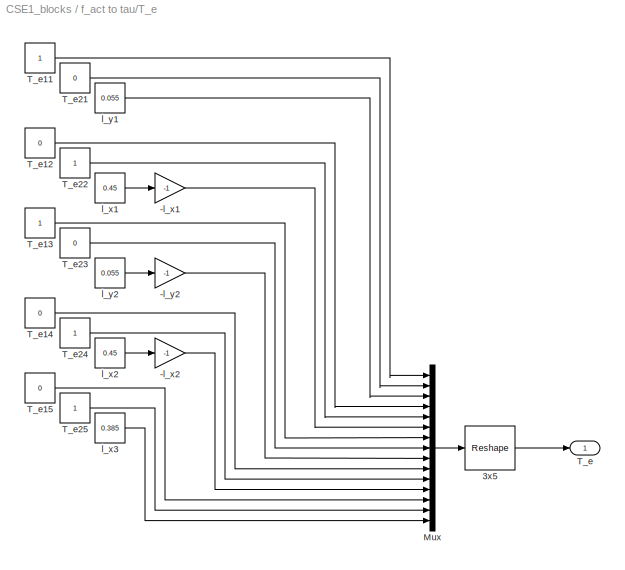
BLOCK [SubSystem] f_act to tau/T_e
  FunctionWithSeparateData = off
  MaskHideContents = off
  MinAlgLoopOccurrences = off
  Opaque = off
  Ports = [0, 1]
  PropExecContextOutsideSubsystem = off
  RTWSystemCode = Auto
  RequestExecContextInheritance = off
BLOCK [Gain] f_act to tau/T_e/-l_x1
  Gain = -1
  OutDataTypeMode = Inherit via internal rule
  OutDataTypeStr = Inherit: Inherit via internal rule
  ParamDataTypeStr = Inherit: Inherit via internal rule
  ParameterDataTypeMode = Inherit via internal rule
  SaturateOnIntegerOverflow = off
BLOCK [Gain] f_act to tau/T_e/-l_x2
  Gain = -1
  OutDataTypeMode = Inherit via internal rule
  OutDataTypeStr = Inherit: Inherit via internal rule
  ParamDataTypeStr = Inherit: Inherit via internal rule
  ParameterDataTypeMode = Inherit via internal rule
  SaturateOnIntegerOverflow = off
BLOCK [Gain] f_act to tau/T_e/-l_y2
  Gain = -1
  OutDataTypeMode = Inherit via internal rule
  OutDataTypeStr = Inherit: Inherit via internal rule
  ParamDataTypeStr = Inherit: Inherit via internal rule
  ParameterDataTypeMode = Inherit via internal rule
  SaturateOnIntegerOverflow = off
BLOCK [Reshape] f_act to tau/T_e/3x5
  OutputDimensionality = Customize
  OutputDimensions = [3,5]
  Ports = [1, 1]
BLOCK [Mux] f_act to tau/T_e/Mux
  DisplayOption = bar
  Inputs = 15
  Ports = [15, 1]
BLOCK [Outport] f_act to tau/T_e/T_e
  IconDisplay = Port number
BLOCK [Constant] f_act to tau/T_e/T_e11
BLOCK [Constant] f_act to tau/T_e/T_e12
  Value = 0
BLOCK [Constant] f_act to tau/T_e/T_e13
BLOCK [Constant] f_act to tau/T_e/T_e14
  Value = 0
BLOCK [Constant] f_act to tau/T_e/T_e15
  Value = 0
BLOCK [Constant] f_act to tau/T_e/T_e21
  Value = 0
BLOCK [Constant] f_act to tau/T_e/T_e22
BLOCK [Constant] f_act to tau/T_e/T_e23
  Value = 0
BLOCK [Constant] f_act to tau/T_e/T_e24
BLOCK [Constant] f_act to tau/T_e/T_e25
BLOCK [Constant] f_act to tau/T_e/l_x1
  Value = 0.45
BLOCK [Constant] f_act to tau/T_e/l_x2
  Value = 0.45
BLOCK [Constant] f_act to tau/T_e/l_x3
  Value = 0.385
BLOCK [Constant] f_act to tau/T_e/l_y1
  Value = 0.055
BLOCK [Constant] f_act to tau/T_e/l_y2
  Value = 0.055
BLOCK [Inport] f_act to tau/f_act
  IconDisplay = Port number
BLOCK [Outport] f_act to tau/tau
  IconDisplay = Port number
BLOCK [SubSystem] rad to [-pi pi]
  FunctionWithSeparateData = off
  MaskDescription = Converts an angle in rad to between -pi and pi
  MaskDisplay = disp('rad to [-pi pi]')
  MaskHideContents = off
  MaskIconFrame = on
  MaskIconOpaque = on
  MaskIconRotate = none
  MaskIconUnits = autoscale
  MaskPortRotate = default
  MaskType = rad to pi/pi
  MinAlgLoopOccurrences = off
  Opaque = off
  Ports = [1, 1]
  PropExecContextOutsideSubsystem = off
  RTWSystemCode = Auto
  RequestExecContextInheritance = off
BLOCK [Constant] rad to [-pi pi]/Constant
  OutDataType = sfix(16)
  OutScaling = 2^0
  Value = 2*pi
BLOCK [Gain] rad to [-pi pi]/Gain
  Gain = pi
  OutDataType = sfix(16)
  OutScaling = 2^0
  ParameterDataType = sfix(16)
  ParameterScaling = 2^0
BLOCK [Math] rad to [-pi pi]/Math\nFunction
  Operator = rem
  OutDataType = sfix(16)
  OutScaling = 2^0
  Ports = [2, 1]
BLOCK [Saturate] rad to [-pi pi]/Saturation
  LowerLimit = -1e10
  UpperLimit = 1e10
BLOCK [Signum] rad to [-pi pi]/Sign
BLOCK [Sum] rad to [-pi pi]/Sum
  IconShape = round
  InputSameDT = off
  Inputs = |+-
  OutDataType = sfix(16)
  OutDataTypeMode = Inherit via internal rule
  OutDataTypeStr = Inherit: Inherit via internal rule
  OutScaling = 2^0
  Ports = [2, 1]
BLOCK [Sum] rad to [-pi pi]/Sum1
  IconShape = round
  InputSameDT = off
  Inputs = |++
  OutDataType = sfix(16)
  OutDataTypeMode = Inherit via internal rule
  OutDataTypeStr = Inherit: Inherit via internal rule
  OutScaling = 2^0
  Ports = [2, 1]
BLOCK [Outport] rad to [-pi pi]/[-pi pi]
  IconDisplay = Port number
  OutDataType = sfix(16)
  OutScaling = 2^0
BLOCK [Inport] rad to [-pi pi]/rad
  IconDisplay = Port number
  OutDataType = sfix(16)
  OutScaling = 2^0
BLOCK [SubSystem] tau to f_act
  FunctionWithSeparateData = off
  MaskHideContents = off
  MinAlgLoopOccurrences = off
  Opaque = off
  Ports = [1, 1]
  PropExecContextOutsideSubsystem = off
  RTWSystemCode = Auto
  RequestExecContextInheritance = off
BLOCK [Product] tau to f_act/Product
  InputSameDT = off
  Multiplication = Matrix(*)
  OutDataType = fixdt(1, 16)
  OutDataTypeMode = Inherit via internal rule
  OutDataTypeStr = Inherit: Inherit via internal rule
  OutScaling = 2^0
  Ports = [2, 1]
  SaturateOnIntegerOverflow = off
BLOCK [Reference] tau to f_act/Pseudoinverse  REF=dspinverses/Pseudoinverse
  Ports = [1, 1]
  SourceBlock = dspinverses/Pseudoinverse
  SourceType = Pseudoinverse
  wanterr = off
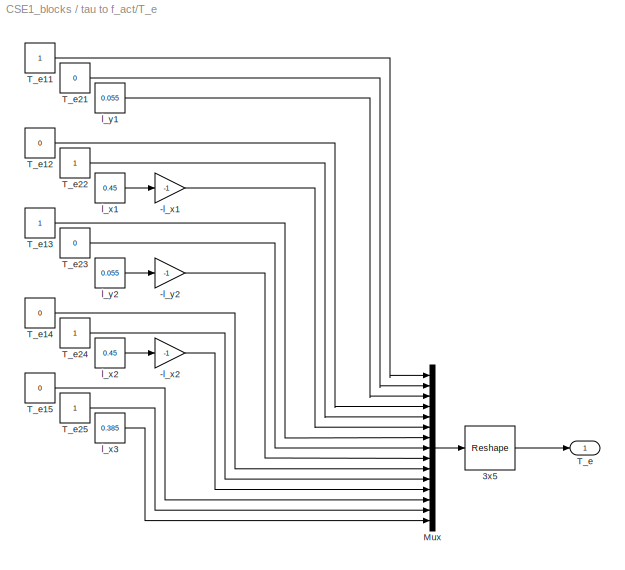
BLOCK [SubSystem] tau to f_act/T_e
  FunctionWithSeparateData = off
  MaskHideContents = off
  MinAlgLoopOccurrences = off
  Opaque = off
  Ports = [0, 1]
  PropExecContextOutsideSubsystem = off
  RTWSystemCode = Auto
  RequestExecContextInheritance = off
BLOCK [Gain] tau to f_act/T_e/-l_x1
  Gain = -1
  OutDataTypeMode = Inherit via internal rule
  OutDataTypeStr = Inherit: Inherit via internal rule
  ParamDataTypeStr = Inherit: Inherit via internal rule
  ParameterDataTypeMode = Inherit via internal rule
  SaturateOnIntegerOverflow = off
BLOCK [Gain] tau to f_act/T_e/-l_x2
  Gain = -1
  OutDataTypeMode = Inherit via internal rule
  OutDataTypeStr = Inherit: Inherit via internal rule
  ParamDataTypeStr = Inherit: Inherit via internal rule
  ParameterDataTypeMode = Inherit via internal rule
  SaturateOnIntegerOverflow = off
BLOCK [Gain] tau to f_act/T_e/-l_y2
  Gain = -1
  OutDataTypeMode = Inherit via internal rule
  OutDataTypeStr = Inherit: Inherit via internal rule
  ParamDataTypeStr = Inherit: Inherit via internal rule
  ParameterDataTypeMode = Inherit via internal rule
  SaturateOnIntegerOverflow = off
BLOCK [Reshape] tau to f_act/T_e/3x5
  OutputDimensionality = Customize
  OutputDimensions = [3,5]
  Ports = [1, 1]
BLOCK [Mux] tau to f_act/T_e/Mux
  DisplayOption = bar
  Inputs = 15
  Ports = [15, 1]
BLOCK [Outport] tau to f_act/T_e/T_e
  IconDisplay = Port number
BLOCK [Constant] tau to f_act/T_e/T_e11
BLOCK [Constant] tau to f_act/T_e/T_e12
  Value = 0
BLOCK [Constant] tau to f_act/T_e/T_e13
BLOCK [Constant] tau to f_act/T_e/T_e14
  Value = 0
BLOCK [Constant] tau to f_act/T_e/T_e15
  Value = 0
BLOCK [Constant] tau to f_act/T_e/T_e21
  Value = 0
BLOCK [Constant] tau to f_act/T_e/T_e22
BLOCK [Constant] tau to f_act/T_e/T_e23
  Value = 0
BLOCK [Constant] tau to f_act/T_e/T_e24
BLOCK [Constant] tau to f_act/T_e/T_e25
BLOCK [Constant] tau to f_act/T_e/l_x1
  Value = 0.45
BLOCK [Constant] tau to f_act/T_e/l_x2
  Value = 0.45
BLOCK [Constant] tau to f_act/T_e/l_x3
  Value = 0.385
BLOCK [Constant] tau to f_act/T_e/l_y1
  Value = 0.055
BLOCK [Constant] tau to f_act/T_e/l_y2
  Value = 0.055
BLOCK [Outport] tau to f_act/f_act
  IconDisplay = Port number
BLOCK [Inport] tau to f_act/tau
  IconDisplay = Port number
ANNOTATION f_1 to u_1 VSP speed 0.3: Table valid for VSP speed == 0.30
ANNOTATION f_1 to u_1 VSP040: Check if the input value is less, equal or greater then zero
ANNOTATION f_1 to u_1 VSP040: If 0: control input is 3
ANNOTATION f_1 to u_1 VSP040: The mapping is divided into 3 parts:\nnegative, zero and positive
ANNOTATION f_2 to u_2 VSP speed 0.3: Switching to the lookup table giving the closes value
ANNOTATION f_2 to u_2 VSP speed 0.3: Tables valid for VSP speed == 0.30
ANNOTATION f_2 to u_2 VSP speed 0.3: workaround setup
ANNOTATION f_2 to u_2 VSP040: Check if the input value is less, equal or greater then zero
ANNOTATION f_2 to u_2 VSP040: If 0: control input is 3
ANNOTATION f_2 to u_2 VSP040: The mapping is divided into 3 parts:\nNegative, zero and positive
ANNOTATION f_3 to u_3 VSP speed 0.3: Table valid for VSP speed == 0.30
ANNOTATION f_3 to u_3 VSP040: Check if the input value is less, equal or greater then zero
ANNOTATION f_3 to u_3 VSP040: If 0: control input is 3
ANNOTATION f_3 to u_3 VSP040: The mapping is divided into 3 parts:\nNegative, zero and positive
ANNOTATION f_4 to u_4 VSP speed 0.3: Tables valid for VSP speed == 0.30
ANNOTATION f_4 to u_4 VSP040: Check if the input value is less, equal or greater then zero
ANNOTATION f_4 to u_4 VSP040: If 0: control input is 3
ANNOTATION f_4 to u_4 VSP040: The mapping is divided into 3 parts:\nNegative, zero and positive
ANNOTATION f_5 to u_5 BT power 0.15: Check if the input value is less, equal or greater then zero
ANNOTATION f_5 to u_5 BT power 0.15: If 0: control input is 3
ANNOTATION f_5 to u_5 BT power 0.15: The mapping is divided into 3 parts:\nNegative, zero and positive
ANNOTATION f_5 to u_5 BT power 0.30: Check if the input value is less, equal or greater then zero
ANNOTATION f_5 to u_5 BT power 0.30: If 0: control input is 3
ANNOTATION f_5 to u_5 BT power 0.30: The mapping is divided into 3 parts:\nNegative, zero and positive
ANNOTATION f_5 to u_5 BT power 0.4: Check if the input value is less, equal or greater then zero
ANNOTATION f_5 to u_5 BT power 0.4: If 0: control input is 3
ANNOTATION f_5 to u_5 BT power 0.4: The mapping is divided into 3 parts:\nNegative, zero and positive
ANNOTATION f_5 to u_5 BT050: Check if the input value is less, equal or greater then zero
ANNOTATION f_5 to u_5 BT050: If 0: control input is 3
ANNOTATION f_5 to u_5 BT050: The mapping is divided into 3 parts:\nNegative, zero and positive
LINE Heading to -pi//pi/Demux:1 -> Heading to -pi//pi/Mux:1
LINE Heading to -pi//pi/Demux:2 -> Heading to -pi//pi/Mux:2
LINE Heading to -pi//pi/Demux:3 -> Heading to -pi//pi/rad to [-pi pi]:1
LINE Heading to -pi//pi/Mux:1 -> Heading to -pi//pi/eta -pi//pi:1
LINE Heading to -pi//pi/eta rad:1 -> Heading to -pi//pi/Demux:1
LINE Heading to -pi//pi/rad to [-pi pi]/Constant:1 -> Heading to -pi//pi/rad to [-pi pi]/Math\nFunction:2
NET Heading to -pi//pi/rad to [-pi pi]/Gain:1 -> Heading to -pi//pi/rad to [-pi pi]/Sum1:2, Heading to -pi//pi/rad to [-pi pi]/Sum:2
LINE Heading to -pi//pi/rad to [-pi pi]/Math\nFunction:1 -> Heading to -pi//pi/rad to [-pi pi]/Sum:1
NET Heading to -pi//pi/rad to [-pi pi]/Saturation:1 -> Heading to -pi//pi/rad to [-pi pi]/Sign:1, Heading to -pi//pi/rad to [-pi pi]/Sum1:1
LINE Heading to -pi//pi/rad to [-pi pi]/Sign:1 -> Heading to -pi//pi/rad to [-pi pi]/Gain:1
LINE Heading to -pi//pi/rad to [-pi pi]/Sum1:1 -> Heading to -pi//pi/rad to [-pi pi]/Math\nFunction:1
LINE Heading to -pi//pi/rad to [-pi pi]/Sum:1 -> Heading to -pi//pi/rad to [-pi pi]/[-pi pi]:1
LINE Heading to -pi//pi/rad to [-pi pi]/rad:1 -> Heading to -pi//pi/rad to [-pi pi]/Saturation:1
LINE Heading to -pi//pi/rad to [-pi pi]:1 -> Heading to -pi//pi/Mux:3
LINE deg to [-180 180]/Constant:1 -> deg to [-180 180]/Math\nFunction:2
NET deg to [-180 180]/Gain:1 -> deg to [-180 180]/Sum1:2, deg to [-180 180]/Sum:2
LINE deg to [-180 180]/Math\nFunction:1 -> deg to [-180 180]/Sum:1
NET deg to [-180 180]/Saturation:1 -> deg to [-180 180]/Sign:1, deg to [-180 180]/Sum1:1
LINE deg to [-180 180]/Sign:1 -> deg to [-180 180]/Gain:1
LINE deg to [-180 180]/Sum1:1 -> deg to [-180 180]/Math\nFunction:1
LINE deg to [-180 180]/Sum:1 -> deg to [-180 180]/[-180 180]:1
LINE deg to [-180 180]/deg:1 -> deg to [-180 180]/Saturation:1
LINE f_1 to u_1 VSP speed 0.3/f_1 to u_1:1 -> f_1 to u_1 VSP speed 0.3/u_1:1
LINE f_1 to u_1 VSP speed 0.3/f_1:1 -> f_1 to u_1 VSP speed 0.3/f_1 to u_1:1
NET f_1 to u_1 VSP040/Dead Zone:1 -> f_1 to u_1 VSP040/If < 0:1, f_1 to u_1 VSP040/If > 0:1, f_1 to u_1 VSP040/if == 0:1
LINE f_1 to u_1 VSP040/Gain1:1 -> f_1 to u_1 VSP040/Sum:3
LINE f_1 to u_1 VSP040/Gain:1 -> f_1 to u_1 VSP040/Sum:2
LINE f_1 to u_1 VSP040/If < 0:1 -> f_1 to u_1 VSP040/Sum:1
LINE f_1 to u_1 VSP040/If > 0:1 -> f_1 to u_1 VSP040/Gain1:1
LINE f_1 to u_1 VSP040/Multiport\nSwitch:1 -> f_1 to u_1 VSP040/u_1:1
LINE f_1 to u_1 VSP040/Sum:1 -> f_1 to u_1 VSP040/Multiport\nSwitch:1
LINE f_1 to u_1 VSP040/f_1 < 0:1 -> f_1 to u_1 VSP040/Multiport\nSwitch:2
LINE f_1 to u_1 VSP040/f_1 = 0:1 -> f_1 to u_1 VSP040/Multiport\nSwitch:3
LINE f_1 to u_1 VSP040/f_1 > 0:1 -> f_1 to u_1 VSP040/Multiport\nSwitch:4
NET f_1 to u_1 VSP040/f_1:1 -> f_1 to u_1 VSP040/Dead Zone:1, f_1 to u_1 VSP040/f_1 < 0:1, f_1 to u_1 VSP040/f_1 > 0:1
LINE f_1 to u_1 VSP040/if == 0:1 -> f_1 to u_1 VSP040/Gain:1
LINE f_2 to u_2 VSP speed 0.3/Gain1:1 -> f_2 to u_2 VSP speed 0.3/Sum:3
LINE f_2 to u_2 VSP speed 0.3/If < 0.00391:1 -> f_2 to u_2 VSP speed 0.3/Sum:1
LINE f_2 to u_2 VSP speed 0.3/If < 0.06731:1 -> f_2 to u_2 VSP speed 0.3/Logical\nOperator:2
LINE f_2 to u_2 VSP speed 0.3/If >= 0.00391:1 -> f_2 to u_2 VSP speed 0.3/Logical\nOperator:1
LINE f_2 to u_2 VSP speed 0.3/If >= 0.06731:1 -> f_2 to u_2 VSP speed 0.3/Gain1:1
NET f_2 to u_2 VSP speed 0.3/Logical\nOperator:1 -> f_2 to u_2 VSP speed 0.3/Sum1:1, f_2 to u_2 VSP speed 0.3/Sum1:2
LINE f_2 to u_2 VSP speed 0.3/Multiport\nSwitch:1 -> f_2 to u_2 VSP speed 0.3/u_2:1
LINE f_2 to u_2 VSP speed 0.3/Sum1:1 -> f_2 to u_2 VSP speed 0.3/Sum:2
LINE f_2 to u_2 VSP speed 0.3/Sum:1 -> f_2 to u_2 VSP speed 0.3/Multiport\nSwitch:1
LINE f_2 to u_2 VSP speed 0.3/f_2 < 0.00391:1 -> f_2 to u_2 VSP speed 0.3/Multiport\nSwitch:2
LINE f_2 to u_2 VSP speed 0.3/f_2 < 0.06731 && f_2 >= 0.00391:1 -> f_2 to u_2 VSP speed 0.3/Multiport\nSwitch:3
LINE f_2 to u_2 VSP speed 0.3/f_2 => 0.06731:1 -> f_2 to u_2 VSP speed 0.3/Multiport\nSwitch:4
NET f_2 to u_2 VSP speed 0.3/f_2:1 -> f_2 to u_2 VSP speed 0.3/If < 0.00391:1, f_2 to u_2 VSP speed 0.3/If < 0.06731:1, f_2 to u_2 VSP speed 0.3/If >= 0.00391:1, f_2 to u_2 VSP speed 0.3/If >= 0.06731:1, f_2 to u_2 VSP speed 0.3/f_2 < 0.00391:1, f_2 to u_2 VSP speed 0.3/f_2 < 0.06731 && f_2 >= 0.00391:1, f_2 to u_2 VSP speed 0.3/f_2 => 0.06731:1
NET f_2 to u_2 VSP040/Dead Zone:1 -> f_2 to u_2 VSP040/If < 0:1, f_2 to u_2 VSP040/If < 1:1, f_2 to u_2 VSP040/If > 0:1
LINE f_2 to u_2 VSP040/Gain1:1 -> f_2 to u_2 VSP040/Sum:3
LINE f_2 to u_2 VSP040/Gain:1 -> f_2 to u_2 VSP040/Sum:2
LINE f_2 to u_2 VSP040/If < 0:1 -> f_2 to u_2 VSP040/Sum:1
LINE f_2 to u_2 VSP040/If < 1:1 -> f_2 to u_2 VSP040/Gain:1
LINE f_2 to u_2 VSP040/If > 0:1 -> f_2 to u_2 VSP040/Gain1:1
LINE f_2 to u_2 VSP040/Multiport\nSwitch:1 -> f_2 to u_2 VSP040/u_2:1
LINE f_2 to u_2 VSP040/Sum:1 -> f_2 to u_2 VSP040/Multiport\nSwitch:1
LINE f_2 to u_2 VSP040/f_2 < 0:1 -> f_2 to u_2 VSP040/Multiport\nSwitch:2
LINE f_2 to u_2 VSP040/f_2 = 0:1 -> f_2 to u_2 VSP040/Multiport\nSwitch:3
LINE f_2 to u_2 VSP040/f_2 > 0:1 -> f_2 to u_2 VSP040/Multiport\nSwitch:4
NET f_2 to u_2 VSP040/f_2:1 -> f_2 to u_2 VSP040/Dead Zone:1, f_2 to u_2 VSP040/Scope2:1, f_2 to u_2 VSP040/f_2 < 0:1, f_2 to u_2 VSP040/f_2 > 0:1
LINE f_3 to u_3 VSP speed 0.3/f_3 to u_3:1 -> f_3 to u_3 VSP speed 0.3/u_3:1
LINE f_3 to u_3 VSP speed 0.3/f_3:1 -> f_3 to u_3 VSP speed 0.3/f_3 to u_3:1
NET f_3 to u_3 VSP040/Dead Zone:1 -> f_3 to u_3 VSP040/If < 0:1, f_3 to u_3 VSP040/If > 0:1, f_3 to u_3 VSP040/if == 0:1
LINE f_3 to u_3 VSP040/Gain1:1 -> f_3 to u_3 VSP040/Sum:3
LINE f_3 to u_3 VSP040/Gain:1 -> f_3 to u_3 VSP040/Sum:2
LINE f_3 to u_3 VSP040/If < 0:1 -> f_3 to u_3 VSP040/Sum:1
LINE f_3 to u_3 VSP040/If > 0:1 -> f_3 to u_3 VSP040/Gain1:1
LINE f_3 to u_3 VSP040/Multiport\nSwitch:1 -> f_3 to u_3 VSP040/u_3:1
LINE f_3 to u_3 VSP040/Sum:1 -> f_3 to u_3 VSP040/Multiport\nSwitch:1
LINE f_3 to u_3 VSP040/f_3 < 0:1 -> f_3 to u_3 VSP040/Multiport\nSwitch:2
LINE f_3 to u_3 VSP040/f_3 = 0:1 -> f_3 to u_3 VSP040/Multiport\nSwitch:3
LINE f_3 to u_3 VSP040/f_3 > 0:1 -> f_3 to u_3 VSP040/Multiport\nSwitch:4
NET f_3 to u_3 VSP040/f_3:1 -> f_3 to u_3 VSP040/Dead Zone:1, f_3 to u_3 VSP040/f_3 < 0:1, f_3 to u_3 VSP040/f_3 > 0:1
LINE f_3 to u_3 VSP040/if == 0:1 -> f_3 to u_3 VSP040/Gain:1
LINE f_4 to u_4 VSP speed 0.3/Gain:1 -> f_4 to u_4 VSP speed 0.3/Sum:2
LINE f_4 to u_4 VSP speed 0.3/If < 0.0451:1 -> f_4 to u_4 VSP speed 0.3/Sum:1
LINE f_4 to u_4 VSP speed 0.3/If >= 0.0451:1 -> f_4 to u_4 VSP speed 0.3/Gain:1
LINE f_4 to u_4 VSP speed 0.3/Multiport\nSwitch:1 -> f_4 to u_4 VSP speed 0.3/u_4:1
LINE f_4 to u_4 VSP speed 0.3/Sum:1 -> f_4 to u_4 VSP speed 0.3/Multiport\nSwitch:1
LINE f_4 to u_4 VSP speed 0.3/f_4 < 0.0451:1 -> f_4 to u_4 VSP speed 0.3/Multiport\nSwitch:2
LINE f_4 to u_4 VSP speed 0.3/f_4 >= 0.0451 :1 -> f_4 to u_4 VSP speed 0.3/Multiport\nSwitch:3
NET f_4 to u_4 VSP speed 0.3/f_4:1 -> f_4 to u_4 VSP speed 0.3/If < 0.0451:1, f_4 to u_4 VSP speed 0.3/If >= 0.0451:1, f_4 to u_4 VSP speed 0.3/f_4 < 0.0451:1, f_4 to u_4 VSP speed 0.3/f_4 >= 0.0451 :1
NET f_4 to u_4 VSP040/Dead Zone:1 -> f_4 to u_4 VSP040/If < 0:1, f_4 to u_4 VSP040/If > 0:1, f_4 to u_4 VSP040/if == 0:1
LINE f_4 to u_4 VSP040/Gain1:1 -> f_4 to u_4 VSP040/Sum:3
LINE f_4 to u_4 VSP040/Gain:1 -> f_4 to u_4 VSP040/Sum:2
LINE f_4 to u_4 VSP040/If < 0:1 -> f_4 to u_4 VSP040/Sum:1
LINE f_4 to u_4 VSP040/If > 0:1 -> f_4 to u_4 VSP040/Gain1:1
LINE f_4 to u_4 VSP040/Multiport\nSwitch:1 -> f_4 to u_4 VSP040/u_4:1
LINE f_4 to u_4 VSP040/Sum:1 -> f_4 to u_4 VSP040/Multiport\nSwitch:1
LINE f_4 to u_4 VSP040/f_4 < 0:1 -> f_4 to u_4 VSP040/Multiport\nSwitch:2
LINE f_4 to u_4 VSP040/f_4 = 0:1 -> f_4 to u_4 VSP040/Multiport\nSwitch:3
LINE f_4 to u_4 VSP040/f_4 > 0:1 -> f_4 to u_4 VSP040/Multiport\nSwitch:4
NET f_4 to u_4 VSP040/f_4:1 -> f_4 to u_4 VSP040/Dead Zone:1, f_4 to u_4 VSP040/f_4 < 0:1, f_4 to u_4 VSP040/f_4 > 0:1
LINE f_4 to u_4 VSP040/if == 0:1 -> f_4 to u_4 VSP040/Gain:1
NET f_5 to u_5 BT power 0.15/Dead Zone\n+-0.01:1 -> f_5 to u_5 BT power 0.15/If < 0:1, f_5 to u_5 BT power 0.15/If > 0:1, f_5 to u_5 BT power 0.15/if == 0:1
LINE f_5 to u_5 BT power 0.15/Gain1:1 -> f_5 to u_5 BT power 0.15/Sum:3
LINE f_5 to u_5 BT power 0.15/Gain:1 -> f_5 to u_5 BT power 0.15/Sum:2
LINE f_5 to u_5 BT power 0.15/If < 0:1 -> f_5 to u_5 BT power 0.15/Sum:1
LINE f_5 to u_5 BT power 0.15/If > 0:1 -> f_5 to u_5 BT power 0.15/Gain1:1
LINE f_5 to u_5 BT power 0.15/Multiport\nSwitch:1 -> f_5 to u_5 BT power 0.15/u_5:1
LINE f_5 to u_5 BT power 0.15/Sum:1 -> f_5 to u_5 BT power 0.15/Multiport\nSwitch:1
LINE f_5 to u_5 BT power 0.15/f_5 < 0:1 -> f_5 to u_5 BT power 0.15/Multiport\nSwitch:2
LINE f_5 to u_5 BT power 0.15/f_5 = 0:1 -> f_5 to u_5 BT power 0.15/Multiport\nSwitch:3
LINE f_5 to u_5 BT power 0.15/f_5 > 0:1 -> f_5 to u_5 BT power 0.15/Multiport\nSwitch:4
NET f_5 to u_5 BT power 0.15/f_5:1 -> f_5 to u_5 BT power 0.15/Dead Zone\n+-0.01:1, f_5 to u_5 BT power 0.15/f_5 < 0:1, f_5 to u_5 BT power 0.15/f_5 > 0:1
LINE f_5 to u_5 BT power 0.15/if == 0:1 -> f_5 to u_5 BT power 0.15/Gain:1
NET f_5 to u_5 BT power 0.30/Dead Zone\n+-0.01:1 -> f_5 to u_5 BT power 0.30/If < 0:1, f_5 to u_5 BT power 0.30/If > 0:1, f_5 to u_5 BT power 0.30/if == 0:1
LINE f_5 to u_5 BT power 0.30/Gain1:1 -> f_5 to u_5 BT power 0.30/Sum:3
LINE f_5 to u_5 BT power 0.30/Gain:1 -> f_5 to u_5 BT power 0.30/Sum:2
LINE f_5 to u_5 BT power 0.30/If < 0:1 -> f_5 to u_5 BT power 0.30/Sum:1
LINE f_5 to u_5 BT power 0.30/If > 0:1 -> f_5 to u_5 BT power 0.30/Gain1:1
LINE f_5 to u_5 BT power 0.30/Multiport\nSwitch:1 -> f_5 to u_5 BT power 0.30/u_5:1
LINE f_5 to u_5 BT power 0.30/Sum:1 -> f_5 to u_5 BT power 0.30/Multiport\nSwitch:1
LINE f_5 to u_5 BT power 0.30/f_5 < 0:1 -> f_5 to u_5 BT power 0.30/Multiport\nSwitch:2
LINE f_5 to u_5 BT power 0.30/f_5 = 0:1 -> f_5 to u_5 BT power 0.30/Multiport\nSwitch:3
LINE f_5 to u_5 BT power 0.30/f_5 > 0:1 -> f_5 to u_5 BT power 0.30/Multiport\nSwitch:4
NET f_5 to u_5 BT power 0.30/f_5:1 -> f_5 to u_5 BT power 0.30/Dead Zone\n+-0.01:1, f_5 to u_5 BT power 0.30/f_5 < 0:1, f_5 to u_5 BT power 0.30/f_5 > 0:1
LINE f_5 to u_5 BT power 0.30/if == 0:1 -> f_5 to u_5 BT power 0.30/Gain:1
NET f_5 to u_5 BT power 0.4/Dead Zone\n+-0.01:1 -> f_5 to u_5 BT power 0.4/If < 0:1, f_5 to u_5 BT power 0.4/If > 0:1, f_5 to u_5 BT power 0.4/if == 0:1
LINE f_5 to u_5 BT power 0.4/Gain1:1 -> f_5 to u_5 BT power 0.4/Sum:3
LINE f_5 to u_5 BT power 0.4/Gain:1 -> f_5 to u_5 BT power 0.4/Sum:2
LINE f_5 to u_5 BT power 0.4/If < 0:1 -> f_5 to u_5 BT power 0.4/Sum:1
LINE f_5 to u_5 BT power 0.4/If > 0:1 -> f_5 to u_5 BT power 0.4/Gain1:1
LINE f_5 to u_5 BT power 0.4/Multiport\nSwitch:1 -> f_5 to u_5 BT power 0.4/u_5:1
LINE f_5 to u_5 BT power 0.4/Sum:1 -> f_5 to u_5 BT power 0.4/Multiport\nSwitch:1
LINE f_5 to u_5 BT power 0.4/f_5 < 0:1 -> f_5 to u_5 BT power 0.4/Multiport\nSwitch:2
LINE f_5 to u_5 BT power 0.4/f_5 = 0:1 -> f_5 to u_5 BT power 0.4/Multiport\nSwitch:3
LINE f_5 to u_5 BT power 0.4/f_5 > 0:1 -> f_5 to u_5 BT power 0.4/Multiport\nSwitch:4
NET f_5 to u_5 BT power 0.4/f_5:1 -> f_5 to u_5 BT power 0.4/Dead Zone\n+-0.01:1, f_5 to u_5 BT power 0.4/f_5 < 0:1, f_5 to u_5 BT power 0.4/f_5 > 0:1
LINE f_5 to u_5 BT power 0.4/if == 0:1 -> f_5 to u_5 BT power 0.4/Gain:1
NET f_5 to u_5 BT050/Dead Zone:1 -> f_5 to u_5 BT050/If < 0:1, f_5 to u_5 BT050/If > 0:1, f_5 to u_5 BT050/if == 0:1
LINE f_5 to u_5 BT050/Gain1:1 -> f_5 to u_5 BT050/Sum:3
LINE f_5 to u_5 BT050/Gain:1 -> f_5 to u_5 BT050/Sum:2
LINE f_5 to u_5 BT050/If < 0:1 -> f_5 to u_5 BT050/Sum:1
LINE f_5 to u_5 BT050/If > 0:1 -> f_5 to u_5 BT050/Gain1:1
LINE f_5 to u_5 BT050/Multiport\nSwitch:1 -> f_5 to u_5 BT050/u_5:1
LINE f_5 to u_5 BT050/Sum:1 -> f_5 to u_5 BT050/Multiport\nSwitch:1
LINE f_5 to u_5 BT050/f_5 < 0:1 -> f_5 to u_5 BT050/Multiport\nSwitch:2
LINE f_5 to u_5 BT050/f_5 = 0:1 -> f_5 to u_5 BT050/Multiport\nSwitch:3
LINE f_5 to u_5 BT050/f_5 > 0:1 -> f_5 to u_5 BT050/Multiport\nSwitch:4
NET f_5 to u_5 BT050/f_5:1 -> f_5 to u_5 BT050/Dead Zone:1, f_5 to u_5 BT050/f_5 < 0:1, f_5 to u_5 BT050/f_5 > 0:1
LINE f_5 to u_5 BT050/if == 0:1 -> f_5 to u_5 BT050/Gain:1
LINE f_act to tau/Product:1 -> f_act to tau/tau:1
LINE f_act to tau/T_e/-l_x1:1 -> f_act to tau/T_e/Mux:6
LINE f_act to tau/T_e/-l_x2:1 -> f_act to tau/T_e/Mux:12
LINE f_act to tau/T_e/-l_y2:1 -> f_act to tau/T_e/Mux:9
LINE f_act to tau/T_e/3x5:1 -> f_act to tau/T_e/T_e:1
LINE f_act to tau/T_e/Mux:1 -> f_act to tau/T_e/3x5:1
LINE f_act to tau/T_e/T_e11:1 -> f_act to tau/T_e/Mux:1
LINE f_act to tau/T_e/T_e12:1 -> f_act to tau/T_e/Mux:4
LINE f_act to tau/T_e/T_e13:1 -> f_act to tau/T_e/Mux:7
LINE f_act to tau/T_e/T_e14:1 -> f_act to tau/T_e/Mux:10
LINE f_act to tau/T_e/T_e15:1 -> f_act to tau/T_e/Mux:13
LINE f_act to tau/T_e/T_e21:1 -> f_act to tau/T_e/Mux:2
LINE f_act to tau/T_e/T_e22:1 -> f_act to tau/T_e/Mux:5
LINE f_act to tau/T_e/T_e23:1 -> f_act to tau/T_e/Mux:8
LINE f_act to tau/T_e/T_e24:1 -> f_act to tau/T_e/Mux:11
LINE f_act to tau/T_e/T_e25:1 -> f_act to tau/T_e/Mux:14
LINE f_act to tau/T_e/l_x1:1 -> f_act to tau/T_e/-l_x1:1
LINE f_act to tau/T_e/l_x2:1 -> f_act to tau/T_e/-l_x2:1
LINE f_act to tau/T_e/l_x3:1 -> f_act to tau/T_e/Mux:15
LINE f_act to tau/T_e/l_y1:1 -> f_act to tau/T_e/Mux:3
LINE f_act to tau/T_e/l_y2:1 -> f_act to tau/T_e/-l_y2:1
LINE f_act to tau/T_e:1 -> f_act to tau/Product:1
LINE f_act to tau/f_act:1 -> f_act to tau/Product:2
LINE rad to [-pi pi]/Constant:1 -> rad to [-pi pi]/Math\nFunction:2
NET rad to [-pi pi]/Gain:1 -> rad to [-pi pi]/Sum1:2, rad to [-pi pi]/Sum:2
LINE rad to [-pi pi]/Math\nFunction:1 -> rad to [-pi pi]/Sum:1
NET rad to [-pi pi]/Saturation:1 -> rad to [-pi pi]/Sign:1, rad to [-pi pi]/Sum1:1
LINE rad to [-pi pi]/Sign:1 -> rad to [-pi pi]/Gain:1
LINE rad to [-pi pi]/Sum1:1 -> rad to [-pi pi]/Math\nFunction:1
LINE rad to [-pi pi]/Sum:1 -> rad to [-pi pi]/[-pi pi]:1
LINE rad to [-pi pi]/rad:1 -> rad to [-pi pi]/Saturation:1
LINE tau to f_act/Product:1 -> tau to f_act/f_act:1
LINE tau to f_act/Pseudoinverse:1 -> tau to f_act/Product:1
LINE tau to f_act/T_e/-l_x1:1 -> tau to f_act/T_e/Mux:6
LINE tau to f_act/T_e/-l_x2:1 -> tau to f_act/T_e/Mux:12
LINE tau to f_act/T_e/-l_y2:1 -> tau to f_act/T_e/Mux:9
LINE tau to f_act/T_e/3x5:1 -> tau to f_act/T_e/T_e:1
LINE tau to f_act/T_e/Mux:1 -> tau to f_act/T_e/3x5:1
LINE tau to f_act/T_e/T_e11:1 -> tau to f_act/T_e/Mux:1
LINE tau to f_act/T_e/T_e12:1 -> tau to f_act/T_e/Mux:4
LINE tau to f_act/T_e/T_e13:1 -> tau to f_act/T_e/Mux:7
LINE tau to f_act/T_e/T_e14:1 -> tau to f_act/T_e/Mux:10
LINE tau to f_act/T_e/T_e15:1 -> tau to f_act/T_e/Mux:13
LINE tau to f_act/T_e/T_e21:1 -> tau to f_act/T_e/Mux:2
LINE tau to f_act/T_e/T_e22:1 -> tau to f_act/T_e/Mux:5
LINE tau to f_act/T_e/T_e23:1 -> tau to f_act/T_e/Mux:8
LINE tau to f_act/T_e/T_e24:1 -> tau to f_act/T_e/Mux:11
LINE tau to f_act/T_e/T_e25:1 -> tau to f_act/T_e/Mux:14
LINE tau to f_act/T_e/l_x1:1 -> tau to f_act/T_e/-l_x1:1
LINE tau to f_act/T_e/l_x2:1 -> tau to f_act/T_e/-l_x2:1
LINE tau to f_act/T_e/l_x3:1 -> tau to f_act/T_e/Mux:15
LINE tau to f_act/T_e/l_y1:1 -> tau to f_act/T_e/Mux:3
LINE tau to f_act/T_e/l_y2:1 -> tau to f_act/T_e/-l_y2:1
LINE tau to f_act/T_e:1 -> tau to f_act/Pseudoinverse:1
LINE tau to f_act/tau:1 -> tau to f_act/Product:2
note: NET lines group one-source signal fan-out (src -> all destinations, sorted); 1:1 wires keep LINE
